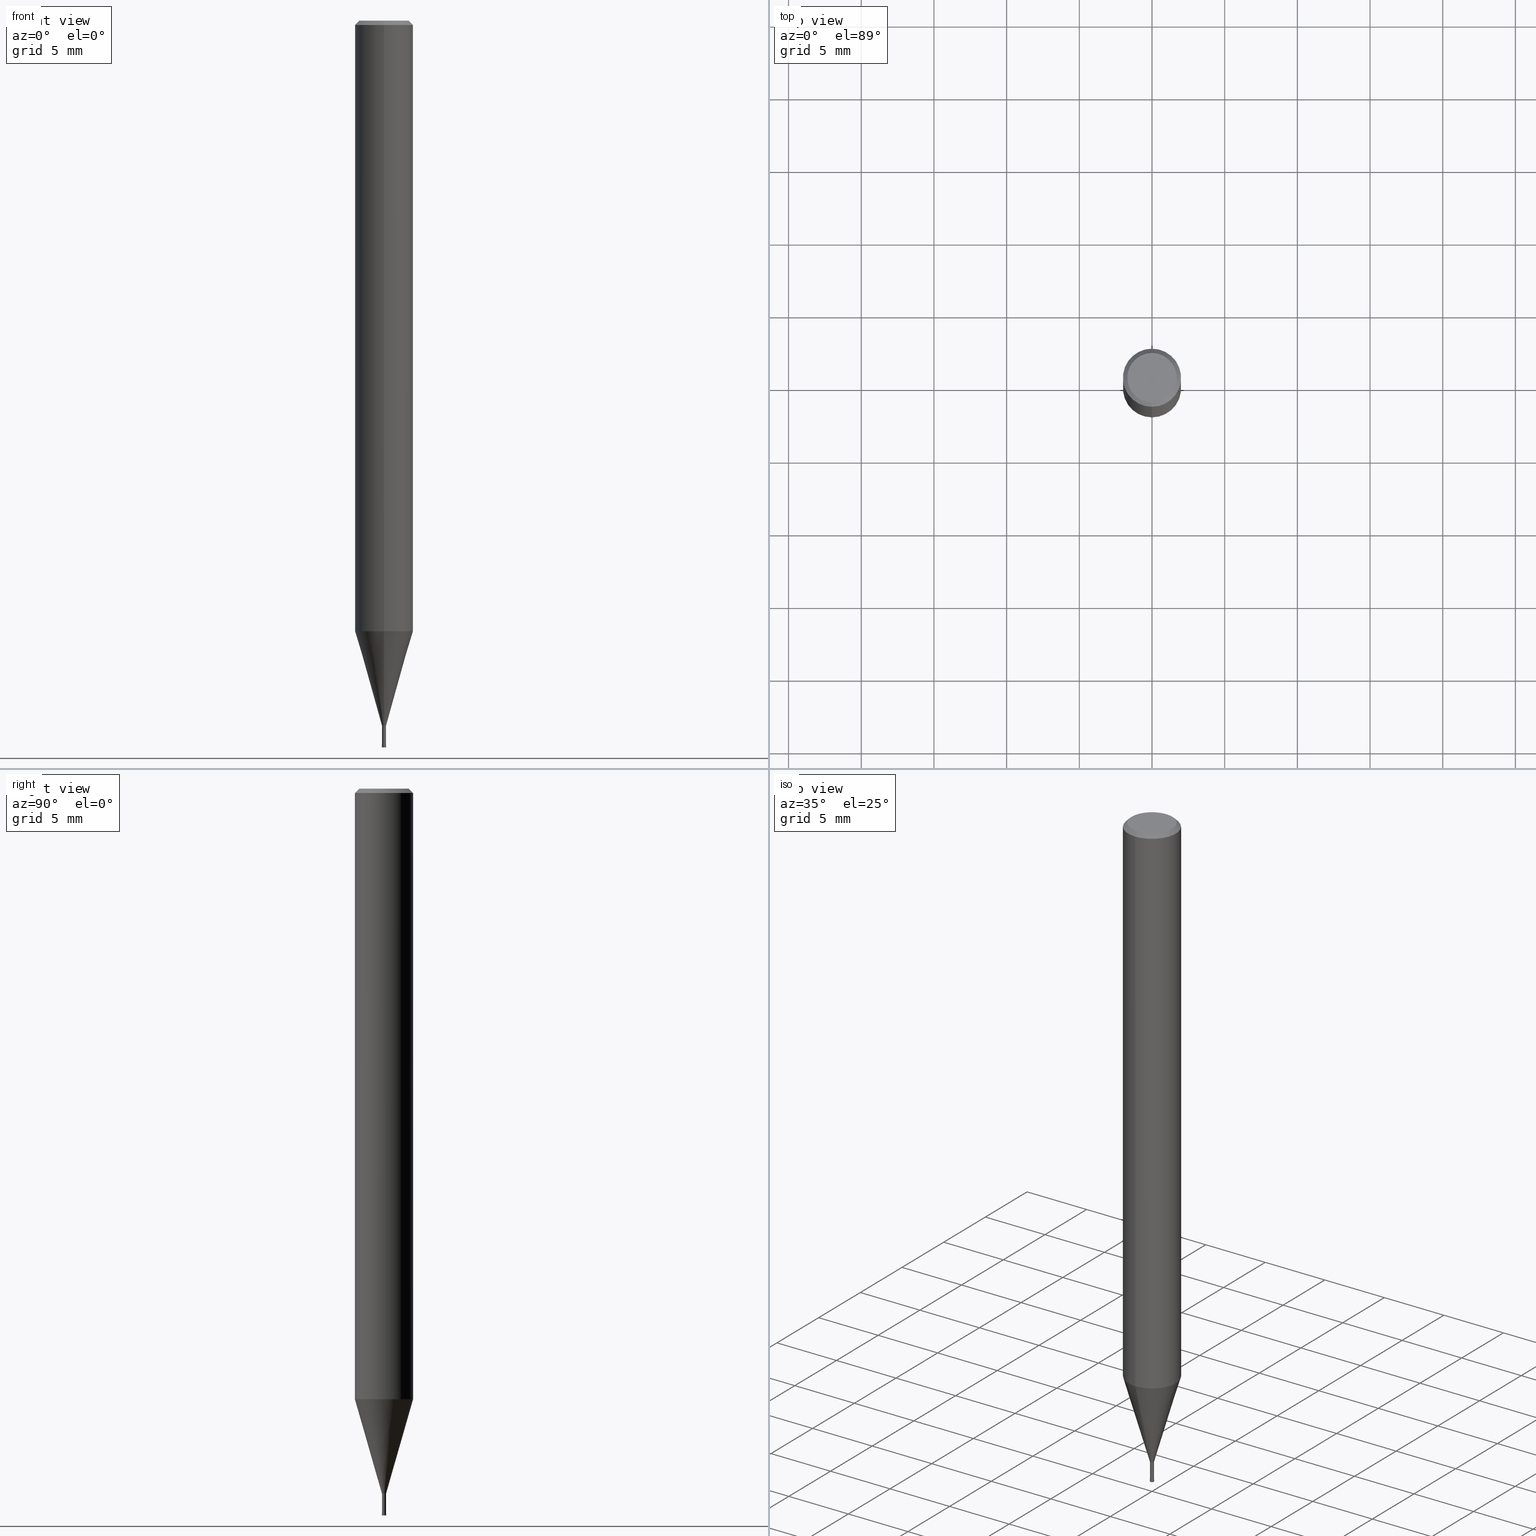
[diagram: canonical four-view strip — front | top / right | iso, engineering-drawing reading convention]
A machine part, canonical four-view strip (front | top / right | iso — engineering-drawing reading convention). The complete STEP part file that produces these views, byte-faithful:
ISO-10303-21;
HEADER;
FILE_DESCRIPTION(('no description'),'unknown implementation level');
FILE_NAME('HLRS4003-002-015-Huellk.stp','  ',('CIMSOURCE GmbH'),('CADClick - KiM GmbH - www.kimweb.de'),'unknown preprocess','ACIS','unknown authorization');
FILE_SCHEMA(('automotive_design'));
ENDSEC;
DATA;
#1=MECHANICAL_DESIGN_GEOMETRIC_PRESENTATION_REPRESENTATION(' ',(#14,#15,#16,#17,#18,#19,#20,#21,#22,#23,#24,#25,#26,#27,#28,#29,#30,#31,#32,#33,#34,#35,#36,#37,#38,#39,#40,#41,#42,#43,#44,#45,#46,#47,#48,#49,#50,#51,#52,#53,#54,#55,#56,#57,#58,#59,#60,#61,#62,#63,#64,#65,#66,#67,#68,#69,#70,#71,#72,#73,#74,#75,#76,#77,#78,#79,#80,#81,#82,#83,#84,#85,#86,#87,#88,#89,#90,#91,#92,#93,#94,#95,#96,#97,#98,#99,#100,#101,#102,#103,#104,#105,#106,#107,#108,#109,#110,#111,#112,#113,#114,#115,#116,#117,#118,#119,#120,#121),#10);
#2=PRODUCT_DEFINITION_CONTEXT('',#122,'design');
#3=APPLICATION_PROTOCOL_DEFINITION('INTERNATIONAL STANDARD','automotive_design',1994,#122);
#4=PRODUCT_CATEGORY_RELATIONSHIP('NONE','NONE',#123,#124);
#5=SHAPE_DEFINITION_REPRESENTATION(#125,#126);
#6=PRODUCT_DEFINITION_CONTEXT('',#127,'design');
#7=APPLICATION_PROTOCOL_DEFINITION('INTERNATIONAL STANDARD','automotive_design',1994,#127);
#8=PRODUCT_CATEGORY_RELATIONSHIP('NONE','NONE',#128,#129);
#9=SHAPE_DEFINITION_REPRESENTATION(#130,#131);
#10= (GEOMETRIC_REPRESENTATION_CONTEXT(3)GLOBAL_UNCERTAINTY_ASSIGNED_CONTEXT((#134))GLOBAL_UNIT_ASSIGNED_CONTEXT((#136,#137,#138))REPRESENTATION_CONTEXT('NONE','WORKSPACE'));
#14=STYLED_ITEM('',(#140),#141);
#15=STYLED_ITEM('',(#142),#143);
#16=STYLED_ITEM('',(#144),#145);
#17=STYLED_ITEM('',(#146),#147);
#18=STYLED_ITEM('',(#148),#149);
#19=STYLED_ITEM('',(#150),#151);
#20=STYLED_ITEM('',(#152),#153);
#21=STYLED_ITEM('',(#154),#155);
#22=STYLED_ITEM('',(#156),#157);
#23=STYLED_ITEM('',(#158),#159);
#24=STYLED_ITEM('',(#160),#161);
#25=STYLED_ITEM('',(#162),#163);
#26=STYLED_ITEM('',(#164),#165);
#27=STYLED_ITEM('',(#166),#167);
#28=STYLED_ITEM('',(#168),#169);
#29=STYLED_ITEM('',(#170),#171);
#30=STYLED_ITEM('',(#172),#173);
#31=STYLED_ITEM('',(#174),#175);
#32=STYLED_ITEM('',(#176),#177);
#33=STYLED_ITEM('',(#178),#179);
#34=STYLED_ITEM('',(#180),#181);
#35=STYLED_ITEM('',(#182),#183);
#36=STYLED_ITEM('',(#184),#185);
#37=STYLED_ITEM('',(#186),#187);
#38=STYLED_ITEM('',(#188),#189);
#39=STYLED_ITEM('',(#190),#191);
#40=STYLED_ITEM('',(#192),#193);
#41=STYLED_ITEM('',(#194),#195);
#42=STYLED_ITEM('',(#196),#197);
#43=STYLED_ITEM('',(#198),#199);
#44=STYLED_ITEM('',(#200),#201);
#45=STYLED_ITEM('',(#202),#203);
#46=STYLED_ITEM('',(#204),#205);
#47=STYLED_ITEM('',(#206),#207);
#48=STYLED_ITEM('',(#208),#209);
#49=STYLED_ITEM('',(#210),#211);
#50=STYLED_ITEM('',(#212),#213);
#51=STYLED_ITEM('',(#214),#215);
#52=STYLED_ITEM('',(#216),#217);
#53=STYLED_ITEM('',(#218),#219);
#54=STYLED_ITEM('',(#220),#221);
#55=STYLED_ITEM('',(#222),#223);
#56=STYLED_ITEM('',(#224),#225);
#57=STYLED_ITEM('',(#226),#227);
#58=STYLED_ITEM('',(#228),#229);
#59=STYLED_ITEM('',(#230),#231);
#60=STYLED_ITEM('',(#232),#233);
#61=STYLED_ITEM('',(#234),#235);
#62=STYLED_ITEM('',(#236),#237);
#63=STYLED_ITEM('',(#238),#239);
#64=STYLED_ITEM('',(#240),#241);
#65=STYLED_ITEM('',(#242),#243);
#66=STYLED_ITEM('',(#244),#245);
#67=STYLED_ITEM('',(#246),#247);
#68=STYLED_ITEM('',(#248),#249);
#69=STYLED_ITEM('',(#250),#251);
#70=STYLED_ITEM('',(#252),#253);
#71=STYLED_ITEM('',(#254),#255);
#72=STYLED_ITEM('',(#256),#257);
#73=STYLED_ITEM('',(#258),#259);
#74=STYLED_ITEM('',(#260),#261);
#75=STYLED_ITEM('',(#262),#263);
#76=STYLED_ITEM('',(#264),#265);
#77=STYLED_ITEM('',(#266),#267);
#78=STYLED_ITEM('',(#268),#269);
#79=STYLED_ITEM('',(#270),#271);
#80=STYLED_ITEM('',(#272),#273);
#81=STYLED_ITEM('',(#274),#275);
#82=STYLED_ITEM('',(#276),#277);
#83=STYLED_ITEM('',(#278),#279);
#84=STYLED_ITEM('',(#280),#281);
#85=STYLED_ITEM('',(#282),#283);
#86=STYLED_ITEM('',(#284),#285);
#87=STYLED_ITEM('',(#286),#287);
#88=STYLED_ITEM('',(#288),#289);
#89=STYLED_ITEM('',(#290),#291);
#90=STYLED_ITEM('',(#292),#293);
#91=STYLED_ITEM('',(#294),#295);
#92=STYLED_ITEM('',(#296),#297);
#93=STYLED_ITEM('',(#298),#299);
#94=STYLED_ITEM('',(#300),#301);
#95=STYLED_ITEM('',(#302),#303);
#96=STYLED_ITEM('',(#304),#305);
#97=STYLED_ITEM('',(#306),#307);
#98=STYLED_ITEM('',(#308),#309);
#99=STYLED_ITEM('',(#310),#311);
#100=STYLED_ITEM('',(#312),#313);
#101=STYLED_ITEM('',(#314),#315);
#102=STYLED_ITEM('',(#316),#317);
#103=STYLED_ITEM('',(#318),#319);
#104=STYLED_ITEM('',(#320),#321);
#105=STYLED_ITEM('',(#322),#323);
#106=STYLED_ITEM('',(#324),#325);
#107=STYLED_ITEM('',(#326),#327);
#108=STYLED_ITEM('',(#328),#329);
#109=STYLED_ITEM('',(#330),#331);
#110=STYLED_ITEM('',(#332),#333);
#111=STYLED_ITEM('',(#334),#335);
#112=STYLED_ITEM('',(#336),#337);
#113=STYLED_ITEM('',(#338),#339);
#114=STYLED_ITEM('',(#340),#341);
#115=STYLED_ITEM('',(#342),#343);
#116=STYLED_ITEM('',(#344),#345);
#117=STYLED_ITEM('',(#346),#347);
#118=STYLED_ITEM('',(#348),#349);
#119=STYLED_ITEM('',(#350),#351);
#120=STYLED_ITEM('',(#352),#353);
#121=STYLED_ITEM('',(#354),#355);
#122=APPLICATION_CONTEXT(' ');
#123=PRODUCT_CATEGORY('part','NONE');
#124=PRODUCT_RELATED_PRODUCT_CATEGORY('detail',' ',(#356));
#125=PRODUCT_DEFINITION_SHAPE('NONE','NONE',#357);
#126=ADVANCED_BREP_SHAPE_REPRESENTATION('1',(#289,#358),#10);
#127=APPLICATION_CONTEXT(' ');
#128=PRODUCT_CATEGORY('part','NONE');
#129=PRODUCT_RELATED_PRODUCT_CATEGORY('detail',' ',(#359));
#130=PRODUCT_DEFINITION_SHAPE('NONE','NONE',#360);
#131=ADVANCED_BREP_SHAPE_REPRESENTATION('2',(#201,#361),#10);
#134=UNCERTAINTY_MEASURE_WITH_UNIT(LENGTH_MEASURE(1.0E-006),#136,'','');
#136= (CONVERSION_BASED_UNIT('MILLIMETRE',#364)LENGTH_UNIT()NAMED_UNIT(#367));
#137= (NAMED_UNIT(#369)PLANE_ANGLE_UNIT()SI_UNIT($,.RADIAN.));
#138= (NAMED_UNIT(#369)SOLID_ANGLE_UNIT()SI_UNIT($,.STERADIAN.));
#140=PRESENTATION_STYLE_ASSIGNMENT((#375));
#141=VERTEX_POINT('',#376);
#142=PRESENTATION_STYLE_ASSIGNMENT((#377));
#143=EDGE_CURVE('',#275,#203,#378,.T.);
#144=PRESENTATION_STYLE_ASSIGNMENT((#379));
#145=VERTEX_POINT('',#380);
#146=PRESENTATION_STYLE_ASSIGNMENT((#381));
#147=EDGE_CURVE('',#335,#163,#382,.T.);
#148=PRESENTATION_STYLE_ASSIGNMENT((#383));
#149=EDGE_CURVE('',#267,#177,#384,.T.);
#150=PRESENTATION_STYLE_ASSIGNMENT((#385));
#151=VERTEX_POINT('',#386);
#152=PRESENTATION_STYLE_ASSIGNMENT((#387));
#153=EDGE_CURVE('',#211,#151,#388,.T.);
#154=PRESENTATION_STYLE_ASSIGNMENT((#389));
#155=EDGE_CURVE('',#177,#319,#390,.T.);
#156=PRESENTATION_STYLE_ASSIGNMENT((#391));
#157=EDGE_CURVE('',#269,#193,#392,.T.);
#158=PRESENTATION_STYLE_ASSIGNMENT((#393));
#159=VERTEX_POINT('',#394);
#160=PRESENTATION_STYLE_ASSIGNMENT((#395));
#161=ADVANCED_FACE('',(#396,#397),#398,.T.);
#162=PRESENTATION_STYLE_ASSIGNMENT((#399));
#163=VERTEX_POINT('',#400);
#164=PRESENTATION_STYLE_ASSIGNMENT((#401));
#165=EDGE_CURVE('',#267,#325,#402,.T.);
#166=PRESENTATION_STYLE_ASSIGNMENT((#403));
#167=VERTEX_POINT('',#404);
#168=PRESENTATION_STYLE_ASSIGNMENT((#405));
#169=EDGE_CURVE('',#141,#159,#406,.T.);
#170=PRESENTATION_STYLE_ASSIGNMENT((#407));
#171=ADVANCED_FACE('',(#408),#409,.T.);
#172=PRESENTATION_STYLE_ASSIGNMENT((#410));
#173=ADVANCED_FACE('',(#411),#412,.T.);
#174=PRESENTATION_STYLE_ASSIGNMENT((#413));
#175=ADVANCED_FACE('',(#414),#415,.T.);
#176=PRESENTATION_STYLE_ASSIGNMENT((#416));
#177=VERTEX_POINT('',#417);
#178=PRESENTATION_STYLE_ASSIGNMENT((#418));
#179=EDGE_CURVE('',#167,#313,#419,.T.);
#180=PRESENTATION_STYLE_ASSIGNMENT((#420));
#181=ADVANCED_FACE('',(#421),#422,.F.);
#182=PRESENTATION_STYLE_ASSIGNMENT((#423));
#183=EDGE_CURVE('',#203,#301,#424,.T.);
#184=PRESENTATION_STYLE_ASSIGNMENT((#425));
#185=VERTEX_POINT('',#426);
#186=PRESENTATION_STYLE_ASSIGNMENT((#427));
#187=ADVANCED_FACE('',(#428),#429,.T.);
#188=PRESENTATION_STYLE_ASSIGNMENT((#430));
#189=ADVANCED_FACE('',(#431),#432,.T.);
#190=PRESENTATION_STYLE_ASSIGNMENT((#433));
#191=EDGE_CURVE('',#349,#239,#434,.T.);
#192=PRESENTATION_STYLE_ASSIGNMENT((#435));
#193=VERTEX_POINT('',#436);
#194=PRESENTATION_STYLE_ASSIGNMENT((#437));
#195=EDGE_CURVE('',#285,#275,#438,.T.);
#196=PRESENTATION_STYLE_ASSIGNMENT((#439));
#197=ADVANCED_FACE('',(#440),#441,.T.);
#198=PRESENTATION_STYLE_ASSIGNMENT((#442));
#199=EDGE_CURVE('',#303,#261,#443,.T.);
#200=PRESENTATION_STYLE_ASSIGNMENT((#444));
#201=MANIFOLD_SOLID_BREP('2',#445);
#202=PRESENTATION_STYLE_ASSIGNMENT((#446));
#203=VERTEX_POINT('',#447);
#204=PRESENTATION_STYLE_ASSIGNMENT((#448));
#205=EDGE_CURVE('',#301,#233,#449,.T.);
#206=PRESENTATION_STYLE_ASSIGNMENT((#450));
#207=EDGE_CURVE('',#273,#323,#451,.T.);
#208=PRESENTATION_STYLE_ASSIGNMENT((#452));
#209=EDGE_CURVE('',#243,#285,#453,.T.);
#210=PRESENTATION_STYLE_ASSIGNMENT((#454));
#211=VERTEX_POINT('',#455);
#212=PRESENTATION_STYLE_ASSIGNMENT((#456));
#213=VERTEX_POINT('',#457);
#214=PRESENTATION_STYLE_ASSIGNMENT((#458));
#215=EDGE_CURVE('',#151,#145,#459,.T.);
#216=PRESENTATION_STYLE_ASSIGNMENT((#460));
#217=EDGE_CURVE('',#203,#275,#461,.T.);
#218=PRESENTATION_STYLE_ASSIGNMENT((#462));
#219=ADVANCED_FACE('',(#463),#464,.F.);
#220=PRESENTATION_STYLE_ASSIGNMENT((#465));
#221=ADVANCED_FACE('',(#466),#467,.T.);
#222=PRESENTATION_STYLE_ASSIGNMENT((#468));
#223=ADVANCED_FACE('',(#469),#470,.F.);
#224=PRESENTATION_STYLE_ASSIGNMENT((#471));
#225=ADVANCED_FACE('',(#472),#473,.T.);
#226=PRESENTATION_STYLE_ASSIGNMENT((#474));
#227=EDGE_CURVE('',#319,#177,#475,.T.);
#228=PRESENTATION_STYLE_ASSIGNMENT((#476));
#229=EDGE_CURVE('',#349,#267,#477,.T.);
#230=PRESENTATION_STYLE_ASSIGNMENT((#478));
#231=ADVANCED_FACE('',(#479),#480,.T.);
#232=PRESENTATION_STYLE_ASSIGNMENT((#481));
#233=VERTEX_POINT('',#482);
#234=PRESENTATION_STYLE_ASSIGNMENT((#483));
#235=EDGE_CURVE('',#193,#273,#484,.T.);
#236=PRESENTATION_STYLE_ASSIGNMENT((#485));
#237=ADVANCED_FACE('',(#486),#487,.T.);
#238=PRESENTATION_STYLE_ASSIGNMENT((#488));
#239=VERTEX_POINT('',#489);
#240=PRESENTATION_STYLE_ASSIGNMENT((#490));
#241=EDGE_CURVE('',#211,#185,#491,.T.);
#242=PRESENTATION_STYLE_ASSIGNMENT((#492));
#243=VERTEX_POINT('',#493);
#244=PRESENTATION_STYLE_ASSIGNMENT((#494));
#245=EDGE_CURVE('',#185,#213,#495,.T.);
#246=PRESENTATION_STYLE_ASSIGNMENT((#496));
#247=EDGE_CURVE('',#313,#335,#497,.T.);
#248=PRESENTATION_STYLE_ASSIGNMENT((#498));
#249=EDGE_CURVE('',#303,#269,#499,.T.);
#250=PRESENTATION_STYLE_ASSIGNMENT((#500));
#251=EDGE_CURVE('',#151,#211,#501,.T.);
#252=PRESENTATION_STYLE_ASSIGNMENT((#502));
#253=EDGE_CURVE('',#261,#303,#503,.T.);
#254=PRESENTATION_STYLE_ASSIGNMENT((#504));
#255=EDGE_CURVE('',#301,#285,#505,.T.);
#256=PRESENTATION_STYLE_ASSIGNMENT((#506));
#257=ADVANCED_FACE('',(#507),#508,.T.);
#258=PRESENTATION_STYLE_ASSIGNMENT((#509));
#259=EDGE_CURVE('',#141,#335,#510,.T.);
#260=PRESENTATION_STYLE_ASSIGNMENT((#511));
#261=VERTEX_POINT('',#512);
#262=PRESENTATION_STYLE_ASSIGNMENT((#513));
#263=ADVANCED_FACE('',(#514,#515),#516,.T.);
#264=PRESENTATION_STYLE_ASSIGNMENT((#517));
#265=EDGE_CURVE('',#163,#159,#518,.T.);
#266=PRESENTATION_STYLE_ASSIGNMENT((#519));
#267=VERTEX_POINT('',#520);
#268=PRESENTATION_STYLE_ASSIGNMENT((#521));
#269=VERTEX_POINT('',#522);
#270=PRESENTATION_STYLE_ASSIGNMENT((#523));
#271=EDGE_CURVE('',#213,#185,#524,.T.);
#272=PRESENTATION_STYLE_ASSIGNMENT((#525));
#273=VERTEX_POINT('',#526);
#274=PRESENTATION_STYLE_ASSIGNMENT((#527));
#275=VERTEX_POINT('',#528);
#276=PRESENTATION_STYLE_ASSIGNMENT((#529));
#277=EDGE_CURVE('',#239,#349,#530,.T.);
#278=PRESENTATION_STYLE_ASSIGNMENT((#531));
#279=EDGE_CURVE('',#313,#167,#532,.T.);
#280=PRESENTATION_STYLE_ASSIGNMENT((#533));
#281=EDGE_CURVE('',#329,#145,#534,.T.);
#282=PRESENTATION_STYLE_ASSIGNMENT((#535));
#283=ADVANCED_FACE('',(#536),#537,.T.);
#284=PRESENTATION_STYLE_ASSIGNMENT((#538));
#285=VERTEX_POINT('',#539);
#286=PRESENTATION_STYLE_ASSIGNMENT((#540));
#287=ADVANCED_FACE('',(#541),#542,.T.);
#288=PRESENTATION_STYLE_ASSIGNMENT((#543));
#289=MANIFOLD_SOLID_BREP('1',#544);
#290=PRESENTATION_STYLE_ASSIGNMENT((#545));
#291=EDGE_CURVE('',#285,#301,#546,.T.);
#292=PRESENTATION_STYLE_ASSIGNMENT((#547));
#293=EDGE_CURVE('',#273,#193,#548,.T.);
#294=PRESENTATION_STYLE_ASSIGNMENT((#549));
#295=EDGE_CURVE('',#319,#325,#550,.T.);
#296=PRESENTATION_STYLE_ASSIGNMENT((#551));
#297=ADVANCED_FACE('',(#552),#553,.T.);
#298=PRESENTATION_STYLE_ASSIGNMENT((#554));
#299=EDGE_CURVE('',#325,#239,#555,.T.);
#300=PRESENTATION_STYLE_ASSIGNMENT((#556));
#301=VERTEX_POINT('',#557);
#302=PRESENTATION_STYLE_ASSIGNMENT((#558));
#303=VERTEX_POINT('',#559);
#304=PRESENTATION_STYLE_ASSIGNMENT((#560));
#305=ADVANCED_FACE('',(#561),#562,.T.);
#306=PRESENTATION_STYLE_ASSIGNMENT((#563));
#307=EDGE_CURVE('',#159,#141,#564,.T.);
#308=PRESENTATION_STYLE_ASSIGNMENT((#565));
#309=EDGE_CURVE('',#243,#233,#566,.T.);
#310=PRESENTATION_STYLE_ASSIGNMENT((#567));
#311=EDGE_CURVE('',#163,#335,#568,.T.);
#312=PRESENTATION_STYLE_ASSIGNMENT((#569));
#313=VERTEX_POINT('',#570);
#314=PRESENTATION_STYLE_ASSIGNMENT((#571));
#315=EDGE_CURVE('',#323,#261,#572,.T.);
#316=PRESENTATION_STYLE_ASSIGNMENT((#573));
#317=EDGE_CURVE('',#329,#211,#574,.T.);
#318=PRESENTATION_STYLE_ASSIGNMENT((#575));
#319=VERTEX_POINT('',#576);
#320=PRESENTATION_STYLE_ASSIGNMENT((#577));
#321=ADVANCED_FACE('',(#578),#579,.T.);
#322=PRESENTATION_STYLE_ASSIGNMENT((#580));
#323=VERTEX_POINT('',#581);
#324=PRESENTATION_STYLE_ASSIGNMENT((#582));
#325=VERTEX_POINT('',#583);
#326=PRESENTATION_STYLE_ASSIGNMENT((#584));
#327=EDGE_CURVE('',#233,#243,#585,.T.);
#328=PRESENTATION_STYLE_ASSIGNMENT((#586));
#329=VERTEX_POINT('',#587);
#330=PRESENTATION_STYLE_ASSIGNMENT((#588));
#331=EDGE_CURVE('',#163,#167,#589,.T.);
#332=PRESENTATION_STYLE_ASSIGNMENT((#590));
#333=ADVANCED_FACE('',(#591,#592),#593,.T.);
#334=PRESENTATION_STYLE_ASSIGNMENT((#594));
#335=VERTEX_POINT('',#595);
#336=PRESENTATION_STYLE_ASSIGNMENT((#596));
#337=EDGE_CURVE('',#269,#323,#597,.T.);
#338=PRESENTATION_STYLE_ASSIGNMENT((#598));
#339=ADVANCED_FACE('',(#599),#600,.F.);
#340=PRESENTATION_STYLE_ASSIGNMENT((#601));
#341=ADVANCED_FACE('',(#602),#603,.T.);
#342=PRESENTATION_STYLE_ASSIGNMENT((#604));
#343=EDGE_CURVE('',#145,#329,#605,.T.);
#344=PRESENTATION_STYLE_ASSIGNMENT((#606));
#345=ADVANCED_FACE('',(#607),#608,.T.);
#346=PRESENTATION_STYLE_ASSIGNMENT((#609));
#347=EDGE_CURVE('',#323,#269,#610,.T.);
#348=PRESENTATION_STYLE_ASSIGNMENT((#611));
#349=VERTEX_POINT('',#612);
#350=PRESENTATION_STYLE_ASSIGNMENT((#613));
#351=EDGE_CURVE('',#213,#151,#614,.T.);
#352=PRESENTATION_STYLE_ASSIGNMENT((#615));
#353=ADVANCED_FACE('',(#616,#617),#618,.T.);
#354=PRESENTATION_STYLE_ASSIGNMENT((#619));
#355=EDGE_CURVE('',#325,#267,#620,.T.);
#356=PRODUCT('1','1','PART-1-DESC',(#621));
#357=PRODUCT_DEFINITION('NONE','NONE',#622,#2);
#358=AXIS2_PLACEMENT_3D('',#623,#624,#625);
#359=PRODUCT('2','2','PART-2-DESC',(#626));
#360=PRODUCT_DEFINITION('NONE','NONE',#627,#6);
#361=AXIS2_PLACEMENT_3D('',#628,#629,#630);
#364=LENGTH_MEASURE_WITH_UNIT(LENGTH_MEASURE(1.0),#631);
#367=DIMENSIONAL_EXPONENTS(1.0,0.0,0.0,0.0,0.0,0.0,0.0);
#369=DIMENSIONAL_EXPONENTS(0.0,0.0,0.0,0.0,0.0,0.0,0.0);
#375=POINT_STYLE(' ',#632,POSITIVE_LENGTH_MEASURE(1.0E-006),#633);
#376=CARTESIAN_POINT('',(0.0,0.13,-49.99));
#377=CURVE_STYLE('',#634,POSITIVE_LENGTH_MEASURE(1.0E-006),#635);
#378=CIRCLE('',#636,0.0675);
#379=POINT_STYLE(' ',#637,POSITIVE_LENGTH_MEASURE(1.0E-006),#638);
#380=CARTESIAN_POINT('',(2.08183080149804E-016,-1.7,0.00999999999999801));
#381=CURVE_STYLE('',#639,POSITIVE_LENGTH_MEASURE(1.0E-006),#640);
#382=CIRCLE('',#641,0.15);
#383=CURVE_STYLE('',#642,POSITIVE_LENGTH_MEASURE(1.0E-006),#643);
#384=LINE('',#644,#645);
#385=POINT_STYLE(' ',#646,POSITIVE_LENGTH_MEASURE(1.0E-006),#647);
#386=CARTESIAN_POINT('',(2.44921270764475E-016,-2.0,-0.289999999999999));
#387=CURVE_STYLE('',#648,POSITIVE_LENGTH_MEASURE(1.0E-006),#649);
#388=CIRCLE('',#650,2.0);
#389=CURVE_STYLE('',#651,POSITIVE_LENGTH_MEASURE(1.0E-006),#652);
#390=CIRCLE('',#653,0.1449);
#391=CURVE_STYLE('',#654,POSITIVE_LENGTH_MEASURE(1.0E-006),#655);
#392=LINE('',#656,#657);
#393=POINT_STYLE(' ',#658,POSITIVE_LENGTH_MEASURE(1.0E-006),#659);
#394=CARTESIAN_POINT('',(1.59198825996909E-017,-0.13,-49.99));
#395=SURFACE_STYLE_USAGE(.BOTH.,#660);
#396=FACE_OUTER_BOUND('',#661,.T.);
#397=FACE_BOUND('',#662,.T.);
#398=PLANE('',#663);
#399=POINT_STYLE(' ',#664,POSITIVE_LENGTH_MEASURE(1.0E-006),#665);
#400=CARTESIAN_POINT('',(1.83690953073357E-017,-0.15,-49.97));
#401=CURVE_STYLE('',#666,POSITIVE_LENGTH_MEASURE(1.0E-006),#667);
#402=CIRCLE('',#668,0.0675);
#403=POINT_STYLE(' ',#669,POSITIVE_LENGTH_MEASURE(1.0E-006),#670);
#404=CARTESIAN_POINT('',(1.83568492437974E-017,-0.1499,-49.81));
#405=CURVE_STYLE('',#671,POSITIVE_LENGTH_MEASURE(1.0E-006),#672);
#406=CIRCLE('',#673,0.13);
#407=SURFACE_STYLE_USAGE(.BOTH.,#674);
#408=FACE_OUTER_BOUND('',#675,.T.);
#409=CONICAL_SURFACE('',#676,1.06995,0.27923596926092);
#410=SURFACE_STYLE_USAGE(.BOTH.,#677);
#411=FACE_OUTER_BOUND('',#678,.T.);
#412=CONICAL_SURFACE('',#679,0.106225,1.44239116379722);
#413=SURFACE_STYLE_USAGE(.BOTH.,#680);
#414=FACE_OUTER_BOUND('',#681,.T.);
#415=CYLINDRICAL_SURFACE('',#682,0.13995);
#416=POINT_STYLE(' ',#683,POSITIVE_LENGTH_MEASURE(1.0E-006),#684);
#417=CARTESIAN_POINT('',(1.77445460668862E-017,-0.1449,-49.81));
#418=CURVE_STYLE('',#685,POSITIVE_LENGTH_MEASURE(1.0E-006),#686);
#419=CIRCLE('',#687,0.1499);
#420=SURFACE_STYLE_USAGE(.BOTH.,#688);
#421=FACE_OUTER_BOUND('',#689,.T.);
#422=CYLINDRICAL_SURFACE('',#690,0.0675);
#423=CURVE_STYLE('',#691,POSITIVE_LENGTH_MEASURE(1.0E-006),#692);
#424=LINE('',#693,#694);
#425=POINT_STYLE(' ',#695,POSITIVE_LENGTH_MEASURE(1.0E-006),#696);
#426=CARTESIAN_POINT('',(0.0,2.0,-42.003));
#427=SURFACE_STYLE_USAGE(.BOTH.,#697);
#428=FACE_OUTER_BOUND('',#698,.T.);
#429=CYLINDRICAL_SURFACE('',#699,2.0);
#430=SURFACE_STYLE_USAGE(.BOTH.,#700);
#431=FACE_OUTER_BOUND('',#701,.T.);
#432=CONICAL_SURFACE('',#702,1.85,0.785398163397453);
#433=CURVE_STYLE('',#703,POSITIVE_LENGTH_MEASURE(1.0E-006),#704);
#434=CIRCLE('',#705,0.0675);
#435=POINT_STYLE(' ',#706,POSITIVE_LENGTH_MEASURE(1.0E-006),#707);
#436=CARTESIAN_POINT('',(2.44915147732706E-016,-1.99995,-42.003));
#437=CURVE_STYLE('',#708,POSITIVE_LENGTH_MEASURE(1.0E-006),#709);
#438=LINE('',#710,#711);
#439=SURFACE_STYLE_USAGE(.BOTH.,#712);
#440=FACE_OUTER_BOUND('',#713,.T.);
#441=PLANE('',#714);
#442=CURVE_STYLE('',#715,POSITIVE_LENGTH_MEASURE(1.0E-006),#716);
#443=CIRCLE('',#717,0.13995);
#444=SURFACE_STYLE_USAGE(.BOTH.,#718);
#445=CLOSED_SHELL('',(#181,#237,#257,#339,#219,#333,#283,#221,#353,#223));
#446=POINT_STYLE(' ',#719,POSITIVE_LENGTH_MEASURE(1.0E-006),#720);
#447=CARTESIAN_POINT('',(8.26609288830105E-018,-0.0675,-49.945));
#448=CURVE_STYLE('',#721,POSITIVE_LENGTH_MEASURE(1.0E-006),#722);
#449=LINE('',#723,#724);
#450=CURVE_STYLE('',#725,POSITIVE_LENGTH_MEASURE(1.0E-006),#726);
#451=LINE('',#727,#728);
#452=CURVE_STYLE('',#729,POSITIVE_LENGTH_MEASURE(1.0E-006),#730);
#453=LINE('',#731,#732);
#454=POINT_STYLE(' ',#733,POSITIVE_LENGTH_MEASURE(1.0E-006),#734);
#455=CARTESIAN_POINT('',(0.0,2.0,-0.289999999999999));
#456=POINT_STYLE(' ',#735,POSITIVE_LENGTH_MEASURE(1.0E-006),#736);
#457=CARTESIAN_POINT('',(2.44921270764475E-016,-2.0,-42.003));
#458=CURVE_STYLE('',#737,POSITIVE_LENGTH_MEASURE(1.0E-006),#738);
#459=LINE('',#739,#740);
#460=CURVE_STYLE('',#741,POSITIVE_LENGTH_MEASURE(1.0E-006),#742);
#461=CIRCLE('',#743,0.0675);
#462=SURFACE_STYLE_USAGE(.BOTH.,#744);
#463=FACE_OUTER_BOUND('',#745,.T.);
#464=CONICAL_SURFACE('',#746,0.1062,1.44230912436268);
#465=SURFACE_STYLE_USAGE(.BOTH.,#747);
#466=FACE_OUTER_BOUND('',#748,.T.);
#467=TOROIDAL_SURFACE('',#749,0.13,0.0199999999999999);
#468=SURFACE_STYLE_USAGE(.BOTH.,#750);
#469=FACE_OUTER_BOUND('',#751,.T.);
#470=CYLINDRICAL_SURFACE('',#752,0.0675);
#471=SURFACE_STYLE_USAGE(.BOTH.,#753);
#472=FACE_OUTER_BOUND('',#754,.T.);
#473=CYLINDRICAL_SURFACE('',#755,2.0);
#474=CURVE_STYLE('',#756,POSITIVE_LENGTH_MEASURE(1.0E-006),#757);
#475=CIRCLE('',#758,0.1449);
#476=CURVE_STYLE('',#759,POSITIVE_LENGTH_MEASURE(1.0E-006),#760);
#477=LINE('',#761,#762);
#478=SURFACE_STYLE_USAGE(.BOTH.,#763);
#479=FACE_OUTER_BOUND('',#764,.T.);
#480=CYLINDRICAL_SURFACE('',#765,0.0675);
#481=POINT_STYLE(' ',#766,POSITIVE_LENGTH_MEASURE(1.0E-006),#767);
#482=CARTESIAN_POINT('',(1.77506690986554E-017,-0.14495,-49.81));
#483=CURVE_STYLE('',#768,POSITIVE_LENGTH_MEASURE(1.0E-006),#769);
#484=CIRCLE('',#770,1.99995);
#485=SURFACE_STYLE_USAGE(.BOTH.,#771);
#486=FACE_OUTER_BOUND('',#772,.T.);
#487=TOROIDAL_SURFACE('',#773,0.13,0.0199999999999999);
#488=POINT_STYLE(' ',#774,POSITIVE_LENGTH_MEASURE(1.0E-006),#775);
#489=CARTESIAN_POINT('',(0.0,0.0675,-49.99));
#490=CURVE_STYLE('',#776,POSITIVE_LENGTH_MEASURE(1.0E-006),#777);
#491=LINE('',#778,#779);
#492=POINT_STYLE(' ',#780,POSITIVE_LENGTH_MEASURE(1.0E-006),#781);
#493=CARTESIAN_POINT('',(0.0,0.14495,-49.81));
#494=CURVE_STYLE('',#782,POSITIVE_LENGTH_MEASURE(1.0E-006),#783);
#495=CIRCLE('',#784,2.0);
#496=CURVE_STYLE('',#785,POSITIVE_LENGTH_MEASURE(1.0E-006),#786);
#497=LINE('',#787,#788);
#498=CURVE_STYLE('',#789,POSITIVE_LENGTH_MEASURE(1.0E-006),#790);
#499=LINE('',#791,#792);
#500=CURVE_STYLE('',#793,POSITIVE_LENGTH_MEASURE(1.0E-006),#794);
#501=CIRCLE('',#795,2.0);
#502=CURVE_STYLE('',#796,POSITIVE_LENGTH_MEASURE(1.0E-006),#797);
#503=CIRCLE('',#798,0.13995);
#504=CURVE_STYLE('',#799,POSITIVE_LENGTH_MEASURE(1.0E-006),#800);
#505=CIRCLE('',#801,0.0675);
#506=SURFACE_STYLE_USAGE(.BOTH.,#802);
#507=FACE_OUTER_BOUND('',#803,.T.);
#508=CONICAL_SURFACE('',#804,0.14995,0.000624999918619742);
#509=CURVE_STYLE('',#805,POSITIVE_LENGTH_MEASURE(1.0E-006),#806);
#510=CIRCLE('',#807,0.0199999999999999);
#511=POINT_STYLE(' ',#808,POSITIVE_LENGTH_MEASURE(1.0E-006),#809);
#512=CARTESIAN_POINT('',(0.0,0.13995,-49.81));
#513=SURFACE_STYLE_USAGE(.BOTH.,#810);
#514=FACE_OUTER_BOUND('',#811,.T.);
#515=FACE_BOUND('',#812,.T.);
#516=PLANE('',#813);
#517=CURVE_STYLE('',#814,POSITIVE_LENGTH_MEASURE(1.0E-006),#815);
#518=CIRCLE('',#816,0.0199999999999999);
#519=POINT_STYLE(' ',#817,POSITIVE_LENGTH_MEASURE(1.0E-006),#818);
#520=CARTESIAN_POINT('',(8.26609288830105E-018,-0.0675,-49.82));
#521=POINT_STYLE(' ',#819,POSITIVE_LENGTH_MEASURE(1.0E-006),#820);
#522=CARTESIAN_POINT('',(1.71383659217442E-017,-0.13995,-48.49));
#523=CURVE_STYLE('',#821,POSITIVE_LENGTH_MEASURE(1.0E-006),#822);
#524=CIRCLE('',#823,2.0);
#525=POINT_STYLE(' ',#824,POSITIVE_LENGTH_MEASURE(1.0E-006),#825);
#526=CARTESIAN_POINT('',(0.0,1.99995,-42.003));
#527=POINT_STYLE(' ',#826,POSITIVE_LENGTH_MEASURE(1.0E-006),#827);
#528=CARTESIAN_POINT('',(0.0,0.0675,-49.945));
#529=CURVE_STYLE('',#828,POSITIVE_LENGTH_MEASURE(1.0E-006),#829);
#530=CIRCLE('',#830,0.0675);
#531=CURVE_STYLE('',#831,POSITIVE_LENGTH_MEASURE(1.0E-006),#832);
#532=CIRCLE('',#833,0.1499);
#533=CURVE_STYLE('',#834,POSITIVE_LENGTH_MEASURE(1.0E-006),#835);
#534=CIRCLE('',#836,1.7);
#535=SURFACE_STYLE_USAGE(.BOTH.,#837);
#536=FACE_OUTER_BOUND('',#838,.T.);
#537=CONICAL_SURFACE('',#839,0.14995,0.000624999918619742);
#538=POINT_STYLE(' ',#840,POSITIVE_LENGTH_MEASURE(1.0E-006),#841);
#539=CARTESIAN_POINT('',(0.0,0.0675,-49.82));
#540=SURFACE_STYLE_USAGE(.BOTH.,#842);
#541=FACE_OUTER_BOUND('',#843,.T.);
#542=CYLINDRICAL_SURFACE('',#844,0.0675);
#543=SURFACE_STYLE_USAGE(.BOTH.,#845);
#544=CLOSED_SHELL('',(#287,#305,#321,#171,#187,#189,#263,#197,#297,#225,#341,#175,#161,#173,#231,#345));
#545=CURVE_STYLE('',#846,POSITIVE_LENGTH_MEASURE(1.0E-006),#847);
#546=CIRCLE('',#848,0.0675);
#547=CURVE_STYLE('',#849,POSITIVE_LENGTH_MEASURE(1.0E-006),#850);
#548=CIRCLE('',#851,1.99995);
#549=CURVE_STYLE('',#852,POSITIVE_LENGTH_MEASURE(1.0E-006),#853);
#550=LINE('',#854,#855);
#551=SURFACE_STYLE_USAGE(.BOTH.,#856);
#552=FACE_OUTER_BOUND('',#857,.T.);
#553=CONICAL_SURFACE('',#858,1.85,0.785398163397453);
#554=CURVE_STYLE('',#859,POSITIVE_LENGTH_MEASURE(1.0E-006),#860);
#555=LINE('',#861,#862);
#556=POINT_STYLE(' ',#863,POSITIVE_LENGTH_MEASURE(1.0E-006),#864);
#557=CARTESIAN_POINT('',(8.26609288830105E-018,-0.0675,-49.82));
#558=POINT_STYLE(' ',#865,POSITIVE_LENGTH_MEASURE(1.0E-006),#866);
#559=CARTESIAN_POINT('',(1.71383659217442E-017,-0.13995,-49.81));
#560=SURFACE_STYLE_USAGE(.BOTH.,#867);
#561=FACE_OUTER_BOUND('',#868,.T.);
#562=CONICAL_SURFACE('',#869,0.106225,1.44239116379722);
#563=CURVE_STYLE('',#870,POSITIVE_LENGTH_MEASURE(1.0E-006),#871);
#564=CIRCLE('',#872,0.13);
#565=CURVE_STYLE('',#873,POSITIVE_LENGTH_MEASURE(1.0E-006),#874);
#566=CIRCLE('',#875,0.14495);
#567=CURVE_STYLE('',#876,POSITIVE_LENGTH_MEASURE(1.0E-006),#877);
#568=CIRCLE('',#878,0.15);
#569=POINT_STYLE(' ',#879,POSITIVE_LENGTH_MEASURE(1.0E-006),#880);
#570=CARTESIAN_POINT('',(0.0,0.1499,-49.81));
#571=CURVE_STYLE('',#881,POSITIVE_LENGTH_MEASURE(1.0E-006),#882);
#572=LINE('',#883,#884);
#573=CURVE_STYLE('',#885,POSITIVE_LENGTH_MEASURE(1.0E-006),#886);
#574=LINE('',#887,#888);
#575=POINT_STYLE(' ',#889,POSITIVE_LENGTH_MEASURE(1.0E-006),#890);
#576=CARTESIAN_POINT('',(0.0,0.1449,-49.81));
#577=SURFACE_STYLE_USAGE(.BOTH.,#891);
#578=FACE_OUTER_BOUND('',#892,.T.);
#579=CYLINDRICAL_SURFACE('',#893,0.13995);
#580=POINT_STYLE(' ',#894,POSITIVE_LENGTH_MEASURE(1.0E-006),#895);
#581=CARTESIAN_POINT('',(0.0,0.13995,-48.49));
#582=POINT_STYLE(' ',#896,POSITIVE_LENGTH_MEASURE(1.0E-006),#897);
#583=CARTESIAN_POINT('',(0.0,0.0675,-49.82));
#584=CURVE_STYLE('',#898,POSITIVE_LENGTH_MEASURE(1.0E-006),#899);
#585=CIRCLE('',#900,0.14495);
#586=POINT_STYLE(' ',#901,POSITIVE_LENGTH_MEASURE(1.0E-006),#902);
#587=CARTESIAN_POINT('',(0.0,1.7,0.00999999999999801));
#588=CURVE_STYLE('',#903,POSITIVE_LENGTH_MEASURE(1.0E-006),#904);
#589=LINE('',#905,#906);
#590=SURFACE_STYLE_USAGE(.BOTH.,#907);
#591=FACE_OUTER_BOUND('',#908,.T.);
#592=FACE_BOUND('',#909,.T.);
#593=PLANE('',#910);
#594=POINT_STYLE(' ',#911,POSITIVE_LENGTH_MEASURE(1.0E-006),#912);
#595=CARTESIAN_POINT('',(0.0,0.15,-49.97));
#596=CURVE_STYLE('',#913,POSITIVE_LENGTH_MEASURE(1.0E-006),#914);
#597=CIRCLE('',#915,0.13995);
#598=SURFACE_STYLE_USAGE(.BOTH.,#916);
#599=FACE_OUTER_BOUND('',#917,.T.);
#600=CONICAL_SURFACE('',#918,0.1062,1.44230912436268);
#601=SURFACE_STYLE_USAGE(.BOTH.,#919);
#602=FACE_OUTER_BOUND('',#920,.T.);
#603=CONICAL_SURFACE('',#921,1.06995,0.27923596926092);
#604=CURVE_STYLE('',#922,POSITIVE_LENGTH_MEASURE(1.0E-006),#923);
#605=CIRCLE('',#924,1.7);
#606=SURFACE_STYLE_USAGE(.BOTH.,#925);
#607=FACE_OUTER_BOUND('',#926,.T.);
#608=PLANE('',#927);
#609=CURVE_STYLE('',#928,POSITIVE_LENGTH_MEASURE(1.0E-006),#929);
#610=CIRCLE('',#930,0.13995);
#611=POINT_STYLE(' ',#931,POSITIVE_LENGTH_MEASURE(1.0E-006),#932);
#612=CARTESIAN_POINT('',(8.26609288830105E-018,-0.0675,-49.99));
#613=CURVE_STYLE('',#933,POSITIVE_LENGTH_MEASURE(1.0E-006),#934);
#614=LINE('',#935,#936);
#615=SURFACE_STYLE_USAGE(.BOTH.,#937);
#616=FACE_BOUND('',#938,.T.);
#617=FACE_OUTER_BOUND('',#939,.T.);
#618=PLANE('',#940);
#619=CURVE_STYLE('',#941,POSITIVE_LENGTH_MEASURE(1.0E-006),#942);
#620=CIRCLE('',#943,0.0675);
#621=PRODUCT_CONTEXT('',#122,'mechanical');
#622=PRODUCT_DEFINITION_FORMATION_WITH_SPECIFIED_SOURCE(' ','NONE',#356,.NOT_KNOWN.);
#623=CARTESIAN_POINT('',(0.0,0.0,0.0));
#624=DIRECTION('',(0.0,0.0,1.0));
#625=DIRECTION('',(1.0,0.0,0.0));
#626=PRODUCT_CONTEXT('',#127,'mechanical');
#627=PRODUCT_DEFINITION_FORMATION_WITH_SPECIFIED_SOURCE(' ','NONE',#359,.NOT_KNOWN.);
#628=CARTESIAN_POINT('',(0.0,0.0,0.0));
#629=DIRECTION('',(0.0,0.0,1.0));
#630=DIRECTION('',(1.0,0.0,0.0));
#631= (NAMED_UNIT(#367)LENGTH_UNIT()SI_UNIT(.MILLI.,.METRE.));
#632=PRE_DEFINED_MARKER('');
#633=COLOUR_RGB('',0.800000011920929,0.800000011920929,0.800000011920929);
#634=DRAUGHTING_PRE_DEFINED_CURVE_FONT('continuous');
#635=COLOUR_RGB('',0.498039215803146,0.498039215803146,0.498039215803146);
#636=AXIS2_PLACEMENT_3D('',#945,#946,#947);
#637=PRE_DEFINED_MARKER('');
#638=COLOUR_RGB('',0.498039215803146,0.498039215803146,0.498039215803146);
#639=DRAUGHTING_PRE_DEFINED_CURVE_FONT('continuous');
#640=COLOUR_RGB('',0.800000011920929,0.800000011920929,0.800000011920929);
#641=AXIS2_PLACEMENT_3D('',#948,#949,#950);
#642=DRAUGHTING_PRE_DEFINED_CURVE_FONT('continuous');
#643=COLOUR_RGB('',0.800000011920929,0.800000011920929,0.800000011920929);
#644=CARTESIAN_POINT('',(1.30053194775936E-017,-0.1062,-49.815));
#645=VECTOR('',#951,1.0);
#646=PRE_DEFINED_MARKER('');
#647=COLOUR_RGB('',0.498039215803146,0.498039215803146,0.498039215803146);
#648=DRAUGHTING_PRE_DEFINED_CURVE_FONT('continuous');
#649=COLOUR_RGB('',0.498039215803146,0.498039215803146,0.498039215803146);
#650=AXIS2_PLACEMENT_3D('',#952,#953,#954);
#651=DRAUGHTING_PRE_DEFINED_CURVE_FONT('continuous');
#652=COLOUR_RGB('',0.800000011920929,0.800000011920929,0.800000011920929);
#653=AXIS2_PLACEMENT_3D('',#955,#956,#957);
#654=DRAUGHTING_PRE_DEFINED_CURVE_FONT('continuous');
#655=COLOUR_RGB('',0.498039215803146,0.498039215803146,0.498039215803146);
#656=CARTESIAN_POINT('',(1.31026756827225E-016,-1.06995,-45.2465));
#657=VECTOR('',#958,1.0);
#658=PRE_DEFINED_MARKER('');
#659=COLOUR_RGB('',0.800000011920929,0.800000011920929,0.800000011920929);
#660=SURFACE_SIDE_STYLE('',(#959));
#661=EDGE_LOOP('',(#960,#961));
#662=EDGE_LOOP('',(#962,#963));
#663=AXIS2_PLACEMENT_3D('',#964,#965,#966);
#664=PRE_DEFINED_MARKER('');
#665=COLOUR_RGB('',0.800000011920929,0.800000011920929,0.800000011920929);
#666=DRAUGHTING_PRE_DEFINED_CURVE_FONT('continuous');
#667=COLOUR_RGB('',0.800000011920929,0.800000011920929,0.800000011920929);
#668=AXIS2_PLACEMENT_3D('',#967,#968,#969);
#669=PRE_DEFINED_MARKER('');
#670=COLOUR_RGB('',0.800000011920929,0.800000011920929,0.800000011920929);
#671=DRAUGHTING_PRE_DEFINED_CURVE_FONT('continuous');
#672=COLOUR_RGB('',0.800000011920929,0.800000011920929,0.800000011920929);
#673=AXIS2_PLACEMENT_3D('',#970,#971,#972);
#674=SURFACE_SIDE_STYLE('',(#973));
#675=EDGE_LOOP('',(#974,#975,#976,#977));
#676=AXIS2_PLACEMENT_3D('',#978,#979,#980);
#677=SURFACE_SIDE_STYLE('',(#981));
#678=EDGE_LOOP('',(#982,#983,#984,#985));
#679=AXIS2_PLACEMENT_3D('',#986,#987,#988);
#680=SURFACE_SIDE_STYLE('',(#989));
#681=EDGE_LOOP('',(#990,#991,#992,#993));
#682=AXIS2_PLACEMENT_3D('',#994,#995,#996);
#683=PRE_DEFINED_MARKER('');
#684=COLOUR_RGB('',0.800000011920929,0.800000011920929,0.800000011920929);
#685=DRAUGHTING_PRE_DEFINED_CURVE_FONT('continuous');
#686=COLOUR_RGB('',0.800000011920929,0.800000011920929,0.800000011920929);
#687=AXIS2_PLACEMENT_3D('',#997,#998,#999);
#688=SURFACE_SIDE_STYLE('',(#1000));
#689=EDGE_LOOP('',(#1001,#1002,#1003,#1004));
#690=AXIS2_PLACEMENT_3D('',#1005,#1006,#1007);
#691=DRAUGHTING_PRE_DEFINED_CURVE_FONT('continuous');
#692=COLOUR_RGB('',0.498039215803146,0.498039215803146,0.498039215803146);
#693=CARTESIAN_POINT('',(8.26609288830105E-018,-0.0675,-49.8825));
#694=VECTOR('',#1008,1.0);
#695=PRE_DEFINED_MARKER('');
#696=COLOUR_RGB('',0.498039215803146,0.498039215803146,0.498039215803146);
#697=SURFACE_SIDE_STYLE('',(#1009));
#698=EDGE_LOOP('',(#1010,#1011,#1012,#1013));
#699=AXIS2_PLACEMENT_3D('',#1014,#1015,#1016);
#700=SURFACE_SIDE_STYLE('',(#1017));
#701=EDGE_LOOP('',(#1018,#1019,#1020,#1021));
#702=AXIS2_PLACEMENT_3D('',#1022,#1023,#1024);
#703=DRAUGHTING_PRE_DEFINED_CURVE_FONT('continuous');
#704=COLOUR_RGB('',0.800000011920929,0.800000011920929,0.800000011920929);
#705=AXIS2_PLACEMENT_3D('',#1025,#1026,#1027);
#706=PRE_DEFINED_MARKER('');
#707=COLOUR_RGB('',0.498039215803146,0.498039215803146,0.498039215803146);
#708=DRAUGHTING_PRE_DEFINED_CURVE_FONT('continuous');
#709=COLOUR_RGB('',0.498039215803146,0.498039215803146,0.498039215803146);
#710=CARTESIAN_POINT('',(-8.26609288830105E-018,0.0675,-49.8825));
#711=VECTOR('',#1028,1.0);
#712=SURFACE_SIDE_STYLE('',(#1029));
#713=EDGE_LOOP('',(#1030,#1031));
#714=AXIS2_PLACEMENT_3D('',#1032,#1033,#1034);
#715=DRAUGHTING_PRE_DEFINED_CURVE_FONT('continuous');
#716=COLOUR_RGB('',0.498039215803146,0.498039215803146,0.498039215803146);
#717=AXIS2_PLACEMENT_3D('',#1035,#1036,#1037);
#718=SURFACE_SIDE_STYLE('',(#1038));
#719=PRE_DEFINED_MARKER('');
#720=COLOUR_RGB('',0.498039215803146,0.498039215803146,0.498039215803146);
#721=DRAUGHTING_PRE_DEFINED_CURVE_FONT('continuous');
#722=COLOUR_RGB('',0.498039215803146,0.498039215803146,0.498039215803146);
#723=CARTESIAN_POINT('',(1.30083809934782E-017,-0.106225,-49.815));
#724=VECTOR('',#1039,1.0);
#725=DRAUGHTING_PRE_DEFINED_CURVE_FONT('continuous');
#726=COLOUR_RGB('',0.498039215803146,0.498039215803146,0.498039215803146);
#727=CARTESIAN_POINT('',(-1.31026756827225E-016,1.06995,-45.2465));
#728=VECTOR('',#1040,1.0);
#729=DRAUGHTING_PRE_DEFINED_CURVE_FONT('continuous');
#730=COLOUR_RGB('',0.498039215803146,0.498039215803146,0.498039215803146);
#731=CARTESIAN_POINT('',(-1.30083809934782E-017,0.106225,-49.815));
#732=VECTOR('',#1041,1.0);
#733=PRE_DEFINED_MARKER('');
#734=COLOUR_RGB('',0.498039215803146,0.498039215803146,0.498039215803146);
#735=PRE_DEFINED_MARKER('');
#736=COLOUR_RGB('',0.498039215803146,0.498039215803146,0.498039215803146);
#737=DRAUGHTING_PRE_DEFINED_CURVE_FONT('continuous');
#738=COLOUR_RGB('',0.498039215803146,0.498039215803146,0.498039215803146);
#739=CARTESIAN_POINT('',(2.2655217545714E-016,-1.85,-0.140000000000001));
#740=VECTOR('',#1042,1.0);
#741=DRAUGHTING_PRE_DEFINED_CURVE_FONT('continuous');
#742=COLOUR_RGB('',0.498039215803146,0.498039215803146,0.498039215803146);
#743=AXIS2_PLACEMENT_3D('',#1043,#1044,#1045);
#744=SURFACE_SIDE_STYLE('',(#1046));
#745=EDGE_LOOP('',(#1047,#1048,#1049,#1050));
#746=AXIS2_PLACEMENT_3D('',#1051,#1052,#1053);
#747=SURFACE_SIDE_STYLE('',(#1054));
#748=EDGE_LOOP('',(#1055,#1056,#1057,#1058));
#749=AXIS2_PLACEMENT_3D('',#1059,#1060,#1061);
#750=SURFACE_SIDE_STYLE('',(#1062));
#751=EDGE_LOOP('',(#1063,#1064,#1065,#1066));
#752=AXIS2_PLACEMENT_3D('',#1067,#1068,#1069);
#753=SURFACE_SIDE_STYLE('',(#1070));
#754=EDGE_LOOP('',(#1071,#1072,#1073,#1074));
#755=AXIS2_PLACEMENT_3D('',#1075,#1076,#1077);
#756=DRAUGHTING_PRE_DEFINED_CURVE_FONT('continuous');
#757=COLOUR_RGB('',0.800000011920929,0.800000011920929,0.800000011920929);
#758=AXIS2_PLACEMENT_3D('',#1078,#1079,#1080);
#759=DRAUGHTING_PRE_DEFINED_CURVE_FONT('continuous');
#760=COLOUR_RGB('',0.800000011920929,0.800000011920929,0.800000011920929);
#761=CARTESIAN_POINT('',(8.26609288830105E-018,-0.0675,-49.905));
#762=VECTOR('',#1081,1.0);
#763=SURFACE_SIDE_STYLE('',(#1082));
#764=EDGE_LOOP('',(#1083,#1084,#1085,#1086));
#765=AXIS2_PLACEMENT_3D('',#1087,#1088,#1089);
#766=PRE_DEFINED_MARKER('');
#767=COLOUR_RGB('',0.498039215803146,0.498039215803146,0.498039215803146);
#768=DRAUGHTING_PRE_DEFINED_CURVE_FONT('continuous');
#769=COLOUR_RGB('',0.498039215803146,0.498039215803146,0.498039215803146);
#770=AXIS2_PLACEMENT_3D('',#1090,#1091,#1092);
#771=SURFACE_SIDE_STYLE('',(#1093));
#772=EDGE_LOOP('',(#1094,#1095,#1096,#1097));
#773=AXIS2_PLACEMENT_3D('',#1098,#1099,#1100);
#774=PRE_DEFINED_MARKER('');
#775=COLOUR_RGB('',0.800000011920929,0.800000011920929,0.800000011920929);
#776=DRAUGHTING_PRE_DEFINED_CURVE_FONT('continuous');
#777=COLOUR_RGB('',0.498039215803146,0.498039215803146,0.498039215803146);
#778=CARTESIAN_POINT('',(-2.44921270764475E-016,2.0,-21.1465));
#779=VECTOR('',#1101,1.0);
#780=PRE_DEFINED_MARKER('');
#781=COLOUR_RGB('',0.498039215803146,0.498039215803146,0.498039215803146);
#782=DRAUGHTING_PRE_DEFINED_CURVE_FONT('continuous');
#783=COLOUR_RGB('',0.498039215803146,0.498039215803146,0.498039215803146);
#784=AXIS2_PLACEMENT_3D('',#1102,#1103,#1104);
#785=DRAUGHTING_PRE_DEFINED_CURVE_FONT('continuous');
#786=COLOUR_RGB('',0.800000011920929,0.800000011920929,0.800000011920929);
#787=CARTESIAN_POINT('',(-1.83629722755665E-017,0.14995,-49.89));
#788=VECTOR('',#1105,1.0);
#789=DRAUGHTING_PRE_DEFINED_CURVE_FONT('continuous');
#790=COLOUR_RGB('',0.498039215803146,0.498039215803146,0.498039215803146);
#791=CARTESIAN_POINT('',(1.71383659217442E-017,-0.13995,-49.15));
#792=VECTOR('',#1106,1.0);
#793=DRAUGHTING_PRE_DEFINED_CURVE_FONT('continuous');
#794=COLOUR_RGB('',0.498039215803146,0.498039215803146,0.498039215803146);
#795=AXIS2_PLACEMENT_3D('',#1107,#1108,#1109);
#796=DRAUGHTING_PRE_DEFINED_CURVE_FONT('continuous');
#797=COLOUR_RGB('',0.498039215803146,0.498039215803146,0.498039215803146);
#798=AXIS2_PLACEMENT_3D('',#1110,#1111,#1112);
#799=DRAUGHTING_PRE_DEFINED_CURVE_FONT('continuous');
#800=COLOUR_RGB('',0.498039215803146,0.498039215803146,0.498039215803146);
#801=AXIS2_PLACEMENT_3D('',#1113,#1114,#1115);
#802=SURFACE_SIDE_STYLE('',(#1116));
#803=EDGE_LOOP('',(#1117,#1118,#1119,#1120));
#804=AXIS2_PLACEMENT_3D('',#1121,#1122,#1123);
#805=DRAUGHTING_PRE_DEFINED_CURVE_FONT('continuous');
#806=COLOUR_RGB('',0.800000011920929,0.800000011920929,0.800000011920929);
#807=AXIS2_PLACEMENT_3D('',#1124,#1125,#1126);
#808=PRE_DEFINED_MARKER('');
#809=COLOUR_RGB('',0.498039215803146,0.498039215803146,0.498039215803146);
#810=SURFACE_SIDE_STYLE('',(#1127));
#811=EDGE_LOOP('',(#1128,#1129));
#812=EDGE_LOOP('',(#1130,#1131));
#813=AXIS2_PLACEMENT_3D('',#1132,#1133,#1134);
#814=DRAUGHTING_PRE_DEFINED_CURVE_FONT('continuous');
#815=COLOUR_RGB('',0.800000011920929,0.800000011920929,0.800000011920929);
#816=AXIS2_PLACEMENT_3D('',#1135,#1136,#1137);
#817=PRE_DEFINED_MARKER('');
#818=COLOUR_RGB('',0.800000011920929,0.800000011920929,0.800000011920929);
#819=PRE_DEFINED_MARKER('');
#820=COLOUR_RGB('',0.498039215803146,0.498039215803146,0.498039215803146);
#821=DRAUGHTING_PRE_DEFINED_CURVE_FONT('continuous');
#822=COLOUR_RGB('',0.498039215803146,0.498039215803146,0.498039215803146);
#823=AXIS2_PLACEMENT_3D('',#1138,#1139,#1140);
#824=PRE_DEFINED_MARKER('');
#825=COLOUR_RGB('',0.498039215803146,0.498039215803146,0.498039215803146);
#826=PRE_DEFINED_MARKER('');
#827=COLOUR_RGB('',0.498039215803146,0.498039215803146,0.498039215803146);
#828=DRAUGHTING_PRE_DEFINED_CURVE_FONT('continuous');
#829=COLOUR_RGB('',0.800000011920929,0.800000011920929,0.800000011920929);
#830=AXIS2_PLACEMENT_3D('',#1141,#1142,#1143);
#831=DRAUGHTING_PRE_DEFINED_CURVE_FONT('continuous');
#832=COLOUR_RGB('',0.800000011920929,0.800000011920929,0.800000011920929);
#833=AXIS2_PLACEMENT_3D('',#1144,#1145,#1146);
#834=DRAUGHTING_PRE_DEFINED_CURVE_FONT('continuous');
#835=COLOUR_RGB('',0.498039215803146,0.498039215803146,0.498039215803146);
#836=AXIS2_PLACEMENT_3D('',#1147,#1148,#1149);
#837=SURFACE_SIDE_STYLE('',(#1150));
#838=EDGE_LOOP('',(#1151,#1152,#1153,#1154));
#839=AXIS2_PLACEMENT_3D('',#1155,#1156,#1157);
#840=PRE_DEFINED_MARKER('');
#841=COLOUR_RGB('',0.498039215803146,0.498039215803146,0.498039215803146);
#842=SURFACE_SIDE_STYLE('',(#1158));
#843=EDGE_LOOP('',(#1159,#1160,#1161,#1162));
#844=AXIS2_PLACEMENT_3D('',#1163,#1164,#1165);
#845=SURFACE_SIDE_STYLE('',(#1166));
#846=DRAUGHTING_PRE_DEFINED_CURVE_FONT('continuous');
#847=COLOUR_RGB('',0.498039215803146,0.498039215803146,0.498039215803146);
#848=AXIS2_PLACEMENT_3D('',#1167,#1168,#1169);
#849=DRAUGHTING_PRE_DEFINED_CURVE_FONT('continuous');
#850=COLOUR_RGB('',0.498039215803146,0.498039215803146,0.498039215803146);
#851=AXIS2_PLACEMENT_3D('',#1170,#1171,#1172);
#852=DRAUGHTING_PRE_DEFINED_CURVE_FONT('continuous');
#853=COLOUR_RGB('',0.800000011920929,0.800000011920929,0.800000011920929);
#854=CARTESIAN_POINT('',(-1.30053194775936E-017,0.1062,-49.815));
#855=VECTOR('',#1173,1.0);
#856=SURFACE_SIDE_STYLE('',(#1174));
#857=EDGE_LOOP('',(#1175,#1176,#1177,#1178));
#858=AXIS2_PLACEMENT_3D('',#1179,#1180,#1181);
#859=DRAUGHTING_PRE_DEFINED_CURVE_FONT('continuous');
#860=COLOUR_RGB('',0.800000011920929,0.800000011920929,0.800000011920929);
#861=CARTESIAN_POINT('',(-8.26609288830105E-018,0.0675,-49.905));
#862=VECTOR('',#1182,1.0);
#863=PRE_DEFINED_MARKER('');
#864=COLOUR_RGB('',0.498039215803146,0.498039215803146,0.498039215803146);
#865=PRE_DEFINED_MARKER('');
#866=COLOUR_RGB('',0.498039215803146,0.498039215803146,0.498039215803146);
#867=SURFACE_SIDE_STYLE('',(#1183));
#868=EDGE_LOOP('',(#1184,#1185,#1186,#1187));
#869=AXIS2_PLACEMENT_3D('',#1188,#1189,#1190);
#870=DRAUGHTING_PRE_DEFINED_CURVE_FONT('continuous');
#871=COLOUR_RGB('',0.800000011920929,0.800000011920929,0.800000011920929);
#872=AXIS2_PLACEMENT_3D('',#1191,#1192,#1193);
#873=DRAUGHTING_PRE_DEFINED_CURVE_FONT('continuous');
#874=COLOUR_RGB('',0.498039215803146,0.498039215803146,0.498039215803146);
#875=AXIS2_PLACEMENT_3D('',#1194,#1195,#1196);
#876=DRAUGHTING_PRE_DEFINED_CURVE_FONT('continuous');
#877=COLOUR_RGB('',0.800000011920929,0.800000011920929,0.800000011920929);
#878=AXIS2_PLACEMENT_3D('',#1197,#1198,#1199);
#879=PRE_DEFINED_MARKER('');
#880=COLOUR_RGB('',0.800000011920929,0.800000011920929,0.800000011920929);
#881=DRAUGHTING_PRE_DEFINED_CURVE_FONT('continuous');
#882=COLOUR_RGB('',0.498039215803146,0.498039215803146,0.498039215803146);
#883=CARTESIAN_POINT('',(-1.71383659217442E-017,0.13995,-49.15));
#884=VECTOR('',#1200,1.0);
#885=DRAUGHTING_PRE_DEFINED_CURVE_FONT('continuous');
#886=COLOUR_RGB('',0.498039215803146,0.498039215803146,0.498039215803146);
#887=CARTESIAN_POINT('',(-2.2655217545714E-016,1.85,-0.140000000000001));
#888=VECTOR('',#1201,1.0);
#889=PRE_DEFINED_MARKER('');
#890=COLOUR_RGB('',0.800000011920929,0.800000011920929,0.800000011920929);
#891=SURFACE_SIDE_STYLE('',(#1202));
#892=EDGE_LOOP('',(#1203,#1204,#1205,#1206));
#893=AXIS2_PLACEMENT_3D('',#1207,#1208,#1209);
#894=PRE_DEFINED_MARKER('');
#895=COLOUR_RGB('',0.498039215803146,0.498039215803146,0.498039215803146);
#896=PRE_DEFINED_MARKER('');
#897=COLOUR_RGB('',0.800000011920929,0.800000011920929,0.800000011920929);
#898=DRAUGHTING_PRE_DEFINED_CURVE_FONT('continuous');
#899=COLOUR_RGB('',0.498039215803146,0.498039215803146,0.498039215803146);
#900=AXIS2_PLACEMENT_3D('',#1210,#1211,#1212);
#901=PRE_DEFINED_MARKER('');
#902=COLOUR_RGB('',0.498039215803146,0.498039215803146,0.498039215803146);
#903=DRAUGHTING_PRE_DEFINED_CURVE_FONT('continuous');
#904=COLOUR_RGB('',0.800000011920929,0.800000011920929,0.800000011920929);
#905=CARTESIAN_POINT('',(1.83629722755665E-017,-0.14995,-49.89));
#906=VECTOR('',#1213,1.0);
#907=SURFACE_SIDE_STYLE('',(#1214));
#908=EDGE_LOOP('',(#1215,#1216));
#909=EDGE_LOOP('',(#1217,#1218));
#910=AXIS2_PLACEMENT_3D('',#1219,#1220,#1221);
#911=PRE_DEFINED_MARKER('');
#912=COLOUR_RGB('',0.800000011920929,0.800000011920929,0.800000011920929);
#913=DRAUGHTING_PRE_DEFINED_CURVE_FONT('continuous');
#914=COLOUR_RGB('',0.498039215803146,0.498039215803146,0.498039215803146);
#915=AXIS2_PLACEMENT_3D('',#1222,#1223,#1224);
#916=SURFACE_SIDE_STYLE('',(#1225));
#917=EDGE_LOOP('',(#1226,#1227,#1228,#1229));
#918=AXIS2_PLACEMENT_3D('',#1230,#1231,#1232);
#919=SURFACE_SIDE_STYLE('',(#1233));
#920=EDGE_LOOP('',(#1234,#1235,#1236,#1237));
#921=AXIS2_PLACEMENT_3D('',#1238,#1239,#1240);
#922=DRAUGHTING_PRE_DEFINED_CURVE_FONT('continuous');
#923=COLOUR_RGB('',0.498039215803146,0.498039215803146,0.498039215803146);
#924=AXIS2_PLACEMENT_3D('',#1241,#1242,#1243);
#925=SURFACE_SIDE_STYLE('',(#1244));
#926=EDGE_LOOP('',(#1245,#1246));
#927=AXIS2_PLACEMENT_3D('',#1247,#1248,#1249);
#928=DRAUGHTING_PRE_DEFINED_CURVE_FONT('continuous');
#929=COLOUR_RGB('',0.498039215803146,0.498039215803146,0.498039215803146);
#930=AXIS2_PLACEMENT_3D('',#1250,#1251,#1252);
#931=PRE_DEFINED_MARKER('');
#932=COLOUR_RGB('',0.800000011920929,0.800000011920929,0.800000011920929);
#933=DRAUGHTING_PRE_DEFINED_CURVE_FONT('continuous');
#934=COLOUR_RGB('',0.498039215803146,0.498039215803146,0.498039215803146);
#935=CARTESIAN_POINT('',(2.44921270764475E-016,-2.0,-21.1465));
#936=VECTOR('',#1253,1.0);
#937=SURFACE_SIDE_STYLE('',(#1254));
#938=EDGE_LOOP('',(#1255,#1256));
#939=EDGE_LOOP('',(#1257,#1258));
#940=AXIS2_PLACEMENT_3D('',#1259,#1260,#1261);
#941=DRAUGHTING_PRE_DEFINED_CURVE_FONT('continuous');
#942=COLOUR_RGB('',0.800000011920929,0.800000011920929,0.800000011920929);
#943=AXIS2_PLACEMENT_3D('',#1262,#1263,#1264);
#945=CARTESIAN_POINT('',(0.0,0.0,-49.945));
#946=DIRECTION('',(0.0,0.0,-1.0));
#947=DIRECTION('',(0.0,1.0,0.0));
#948=CARTESIAN_POINT('',(0.0,0.0,-49.97));
#949=DIRECTION('',(0.0,0.0,-1.0));
#950=DIRECTION('',(0.0,1.0,0.0));
#951=DIRECTION('',(1.21451176350991E-016,-0.991756869233152,0.12813396243329));
#952=CARTESIAN_POINT('',(0.0,0.0,-0.289999999999999));
#953=DIRECTION('',(0.0,0.0,-1.0));
#954=DIRECTION('',(0.0,1.0,0.0));
#955=CARTESIAN_POINT('',(0.0,0.0,-49.81));
#956=DIRECTION('',(0.0,0.0,-1.0));
#957=DIRECTION('',(0.0,1.0,0.0));
#958=DIRECTION('',(3.37527585527933E-017,-0.275621292078393,0.961266301995986));
#959=SURFACE_STYLE_FILL_AREA(#1265);
#960=ORIENTED_EDGE('',*,*,#309,.F.);
#961=ORIENTED_EDGE('',*,*,#327,.F.);
#962=ORIENTED_EDGE('',*,*,#253,.T.);
#963=ORIENTED_EDGE('',*,*,#199,.T.);
#964=CARTESIAN_POINT('',(0.0,0.14245,-49.81));
#965=DIRECTION('',(-0.0,0.0,1.0));
#966=DIRECTION('',(0.0,-1.0,0.0));
#967=CARTESIAN_POINT('',(0.0,0.0,-49.82));
#968=DIRECTION('',(0.0,0.0,-1.0));
#969=DIRECTION('',(0.0,1.0,0.0));
#970=CARTESIAN_POINT('',(0.0,0.0,-49.99));
#971=DIRECTION('',(0.0,0.0,-1.0));
#972=DIRECTION('',(0.0,1.0,0.0));
#973=SURFACE_STYLE_FILL_AREA(#1266);
#974=ORIENTED_EDGE('',*,*,#207,.F.);
#975=ORIENTED_EDGE('',*,*,#293,.T.);
#976=ORIENTED_EDGE('',*,*,#157,.F.);
#977=ORIENTED_EDGE('',*,*,#347,.F.);
#978=CARTESIAN_POINT('',(0.0,0.0,-45.2465));
#979=DIRECTION('',(-0.0,-0.0,1.0));
#980=DIRECTION('',(0.0,1.0,0.0));
#981=SURFACE_STYLE_FILL_AREA(#1267);
#982=ORIENTED_EDGE('',*,*,#209,.T.);
#983=ORIENTED_EDGE('',*,*,#255,.F.);
#984=ORIENTED_EDGE('',*,*,#205,.T.);
#985=ORIENTED_EDGE('',*,*,#327,.T.);
#986=CARTESIAN_POINT('',(0.0,0.0,-49.815));
#987=DIRECTION('',(-0.0,-0.0,1.0));
#988=DIRECTION('',(0.0,1.0,0.0));
#989=SURFACE_STYLE_FILL_AREA(#1268);
#990=ORIENTED_EDGE('',*,*,#315,.T.);
#991=ORIENTED_EDGE('',*,*,#199,.F.);
#992=ORIENTED_EDGE('',*,*,#249,.T.);
#993=ORIENTED_EDGE('',*,*,#337,.T.);
#994=CARTESIAN_POINT('',(0.0,0.0,-49.15));
#995=DIRECTION('',(-0.0,-0.0,1.0));
#996=DIRECTION('',(0.0,1.0,0.0));
#997=CARTESIAN_POINT('',(0.0,0.0,-49.81));
#998=DIRECTION('',(0.0,0.0,-1.0));
#999=DIRECTION('',(0.0,1.0,0.0));
#1000=SURFACE_STYLE_FILL_AREA(#1269);
#1001=ORIENTED_EDGE('',*,*,#299,.F.);
#1002=ORIENTED_EDGE('',*,*,#165,.F.);
#1003=ORIENTED_EDGE('',*,*,#229,.F.);
#1004=ORIENTED_EDGE('',*,*,#191,.T.);
#1005=CARTESIAN_POINT('',(0.0,0.0,-49.905));
#1006=DIRECTION('',(-0.0,-0.0,1.0));
#1007=DIRECTION('',(0.0,1.0,0.0));
#1008=DIRECTION('',(-0.0,-0.0,1.0));
#1009=SURFACE_STYLE_FILL_AREA(#1270);
#1010=ORIENTED_EDGE('',*,*,#241,.F.);
#1011=ORIENTED_EDGE('',*,*,#153,.T.);
#1012=ORIENTED_EDGE('',*,*,#351,.F.);
#1013=ORIENTED_EDGE('',*,*,#245,.F.);
#1014=CARTESIAN_POINT('',(0.0,0.0,-21.1465));
#1015=DIRECTION('',(-0.0,-0.0,1.0));
#1016=DIRECTION('',(0.0,1.0,0.0));
#1017=SURFACE_STYLE_FILL_AREA(#1271);
#1018=ORIENTED_EDGE('',*,*,#317,.F.);
#1019=ORIENTED_EDGE('',*,*,#281,.T.);
#1020=ORIENTED_EDGE('',*,*,#215,.F.);
#1021=ORIENTED_EDGE('',*,*,#153,.F.);
#1022=CARTESIAN_POINT('',(0.0,0.0,-0.140000000000001));
#1023=DIRECTION('',(0.0,-0.0,-1.0));
#1024=DIRECTION('',(0.0,1.0,0.0));
#1025=CARTESIAN_POINT('',(0.0,0.0,-49.99));
#1026=DIRECTION('',(0.0,0.0,-1.0));
#1027=DIRECTION('',(0.0,1.0,0.0));
#1028=DIRECTION('',(0.0,0.0,-1.0));
#1029=SURFACE_STYLE_FILL_AREA(#1272);
#1030=ORIENTED_EDGE('',*,*,#281,.F.);
#1031=ORIENTED_EDGE('',*,*,#343,.F.);
#1032=CARTESIAN_POINT('',(0.0,0.85,0.00999999999999801));
#1033=DIRECTION('',(-0.0,0.0,1.0));
#1034=DIRECTION('',(0.0,-1.0,0.0));
#1035=CARTESIAN_POINT('',(0.0,0.0,-49.81));
#1036=DIRECTION('',(0.0,0.0,-1.0));
#1037=DIRECTION('',(0.0,1.0,0.0));
#1038=SURFACE_STYLE_FILL_AREA(#1273);
#1039=DIRECTION('',(1.2145246325311E-016,-0.991767377933477,0.128052598829368));
#1040=DIRECTION('',(3.37527585527933E-017,-0.275621292078393,-0.961266301995986));
#1041=DIRECTION('',(1.2145246325311E-016,-0.991767377933477,-0.128052598829368));
#1042=DIRECTION('',(-8.6592745707194E-017,0.707106781186551,0.707106781186544));
#1043=CARTESIAN_POINT('',(0.0,0.0,-49.945));
#1044=DIRECTION('',(0.0,0.0,-1.0));
#1045=DIRECTION('',(0.0,1.0,0.0));
#1046=SURFACE_STYLE_FILL_AREA(#1274);
#1047=ORIENTED_EDGE('',*,*,#295,.T.);
#1048=ORIENTED_EDGE('',*,*,#355,.T.);
#1049=ORIENTED_EDGE('',*,*,#149,.T.);
#1050=ORIENTED_EDGE('',*,*,#227,.F.);
#1051=CARTESIAN_POINT('',(0.0,0.0,-49.815));
#1052=DIRECTION('',(-0.0,-0.0,1.0));
#1053=DIRECTION('',(0.0,1.0,0.0));
#1054=SURFACE_STYLE_FILL_AREA(#1275);
#1055=ORIENTED_EDGE('',*,*,#265,.T.);
#1056=ORIENTED_EDGE('',*,*,#169,.F.);
#1057=ORIENTED_EDGE('',*,*,#259,.T.);
#1058=ORIENTED_EDGE('',*,*,#147,.T.);
#1059=CARTESIAN_POINT('',(0.0,0.0,-49.97));
#1060=DIRECTION('',(0.0,0.0,-1.0));
#1061=DIRECTION('',(0.0,-1.0,0.0));
#1062=SURFACE_STYLE_FILL_AREA(#1276);
#1063=ORIENTED_EDGE('',*,*,#299,.T.);
#1064=ORIENTED_EDGE('',*,*,#277,.T.);
#1065=ORIENTED_EDGE('',*,*,#229,.T.);
#1066=ORIENTED_EDGE('',*,*,#355,.F.);
#1067=CARTESIAN_POINT('',(0.0,0.0,-49.905));
#1068=DIRECTION('',(-0.0,-0.0,1.0));
#1069=DIRECTION('',(0.0,1.0,0.0));
#1070=SURFACE_STYLE_FILL_AREA(#1277);
#1071=ORIENTED_EDGE('',*,*,#241,.T.);
#1072=ORIENTED_EDGE('',*,*,#271,.F.);
#1073=ORIENTED_EDGE('',*,*,#351,.T.);
#1074=ORIENTED_EDGE('',*,*,#251,.T.);
#1075=CARTESIAN_POINT('',(0.0,0.0,-21.1465));
#1076=DIRECTION('',(-0.0,-0.0,1.0));
#1077=DIRECTION('',(0.0,1.0,0.0));
#1078=CARTESIAN_POINT('',(0.0,0.0,-49.81));
#1079=DIRECTION('',(0.0,0.0,-1.0));
#1080=DIRECTION('',(0.0,1.0,0.0));
#1081=DIRECTION('',(0.0,-0.0,1.0));
#1082=SURFACE_STYLE_FILL_AREA(#1278);
#1083=ORIENTED_EDGE('',*,*,#195,.T.);
#1084=ORIENTED_EDGE('',*,*,#217,.F.);
#1085=ORIENTED_EDGE('',*,*,#183,.T.);
#1086=ORIENTED_EDGE('',*,*,#255,.T.);
#1087=CARTESIAN_POINT('',(0.0,0.0,-49.8825));
#1088=DIRECTION('',(-0.0,-0.0,1.0));
#1089=DIRECTION('',(0.0,1.0,0.0));
#1090=CARTESIAN_POINT('',(0.0,0.0,-42.003));
#1091=DIRECTION('',(0.0,0.0,-1.0));
#1092=DIRECTION('',(0.0,1.0,0.0));
#1093=SURFACE_STYLE_FILL_AREA(#1279);
#1094=ORIENTED_EDGE('',*,*,#265,.F.);
#1095=ORIENTED_EDGE('',*,*,#311,.T.);
#1096=ORIENTED_EDGE('',*,*,#259,.F.);
#1097=ORIENTED_EDGE('',*,*,#307,.F.);
#1098=CARTESIAN_POINT('',(0.0,0.0,-49.97));
#1099=DIRECTION('',(0.0,0.0,-1.0));
#1100=DIRECTION('',(0.0,-1.0,0.0));
#1101=DIRECTION('',(0.0,0.0,-1.0));
#1102=CARTESIAN_POINT('',(0.0,0.0,-42.003));
#1103=DIRECTION('',(0.0,0.0,-1.0));
#1104=DIRECTION('',(0.0,1.0,0.0));
#1105=DIRECTION('',(-7.65378821650865E-020,0.000624999877929654,-0.999999804687557));
#1106=DIRECTION('',(-0.0,-0.0,1.0));
#1107=CARTESIAN_POINT('',(0.0,0.0,-0.289999999999999));
#1108=DIRECTION('',(0.0,0.0,-1.0));
#1109=DIRECTION('',(0.0,1.0,0.0));
#1110=CARTESIAN_POINT('',(0.0,0.0,-49.81));
#1111=DIRECTION('',(0.0,0.0,-1.0));
#1112=DIRECTION('',(0.0,1.0,0.0));
#1113=CARTESIAN_POINT('',(0.0,0.0,-49.82));
#1114=DIRECTION('',(0.0,0.0,-1.0));
#1115=DIRECTION('',(0.0,1.0,0.0));
#1116=SURFACE_STYLE_FILL_AREA(#1280);
#1117=ORIENTED_EDGE('',*,*,#247,.F.);
#1118=ORIENTED_EDGE('',*,*,#279,.T.);
#1119=ORIENTED_EDGE('',*,*,#331,.F.);
#1120=ORIENTED_EDGE('',*,*,#147,.F.);
#1121=CARTESIAN_POINT('',(0.0,0.0,-49.89));
#1122=DIRECTION('',(0.0,-0.0,-1.0));
#1123=DIRECTION('',(0.0,1.0,0.0));
#1124=CARTESIAN_POINT('',(-1.59198825996909E-017,0.13,-49.97));
#1125=DIRECTION('',(1.0,1.22460635382238E-016,0.0));
#1126=DIRECTION('',(-1.22460635382238E-016,1.0,0.0));
#1127=SURFACE_STYLE_FILL_AREA(#1281);
#1128=ORIENTED_EDGE('',*,*,#245,.T.);
#1129=ORIENTED_EDGE('',*,*,#271,.T.);
#1130=ORIENTED_EDGE('',*,*,#293,.F.);
#1131=ORIENTED_EDGE('',*,*,#235,.F.);
#1132=CARTESIAN_POINT('',(0.0,1.0,-42.003));
#1133=DIRECTION('',(0.0,0.0,-1.0));
#1134=DIRECTION('',(0.0,1.0,0.0));
#1135=CARTESIAN_POINT('',(1.59198825996909E-017,-0.13,-49.97));
#1136=DIRECTION('',(1.0,1.22460635382238E-016,0.0));
#1137=DIRECTION('',(1.22460635382238E-016,-1.0,-0.0));
#1138=CARTESIAN_POINT('',(0.0,0.0,-42.003));
#1139=DIRECTION('',(0.0,0.0,-1.0));
#1140=DIRECTION('',(0.0,1.0,0.0));
#1141=CARTESIAN_POINT('',(0.0,0.0,-49.99));
#1142=DIRECTION('',(0.0,0.0,-1.0));
#1143=DIRECTION('',(0.0,1.0,0.0));
#1144=CARTESIAN_POINT('',(0.0,0.0,-49.81));
#1145=DIRECTION('',(0.0,0.0,-1.0));
#1146=DIRECTION('',(0.0,1.0,0.0));
#1147=CARTESIAN_POINT('',(0.0,0.0,0.00999999999999801));
#1148=DIRECTION('',(0.0,0.0,-1.0));
#1149=DIRECTION('',(0.0,1.0,0.0));
#1150=SURFACE_STYLE_FILL_AREA(#1282);
#1151=ORIENTED_EDGE('',*,*,#247,.T.);
#1152=ORIENTED_EDGE('',*,*,#311,.F.);
#1153=ORIENTED_EDGE('',*,*,#331,.T.);
#1154=ORIENTED_EDGE('',*,*,#179,.T.);
#1155=CARTESIAN_POINT('',(0.0,0.0,-49.89));
#1156=DIRECTION('',(0.0,-0.0,-1.0));
#1157=DIRECTION('',(0.0,1.0,0.0));
#1158=SURFACE_STYLE_FILL_AREA(#1283);
#1159=ORIENTED_EDGE('',*,*,#195,.F.);
#1160=ORIENTED_EDGE('',*,*,#291,.T.);
#1161=ORIENTED_EDGE('',*,*,#183,.F.);
#1162=ORIENTED_EDGE('',*,*,#143,.F.);
#1163=CARTESIAN_POINT('',(0.0,0.0,-49.8825));
#1164=DIRECTION('',(-0.0,-0.0,1.0));
#1165=DIRECTION('',(0.0,1.0,0.0));
#1166=SURFACE_STYLE_FILL_AREA(#1284);
#1167=CARTESIAN_POINT('',(0.0,0.0,-49.82));
#1168=DIRECTION('',(0.0,0.0,-1.0));
#1169=DIRECTION('',(0.0,1.0,0.0));
#1170=CARTESIAN_POINT('',(0.0,0.0,-42.003));
#1171=DIRECTION('',(0.0,0.0,-1.0));
#1172=DIRECTION('',(0.0,1.0,0.0));
#1173=DIRECTION('',(1.21451176350991E-016,-0.991756869233152,-0.12813396243329));
#1174=SURFACE_STYLE_FILL_AREA(#1285);
#1175=ORIENTED_EDGE('',*,*,#317,.T.);
#1176=ORIENTED_EDGE('',*,*,#251,.F.);
#1177=ORIENTED_EDGE('',*,*,#215,.T.);
#1178=ORIENTED_EDGE('',*,*,#343,.T.);
#1179=CARTESIAN_POINT('',(0.0,0.0,-0.140000000000001));
#1180=DIRECTION('',(0.0,-0.0,-1.0));
#1181=DIRECTION('',(0.0,1.0,0.0));
#1182=DIRECTION('',(0.0,-0.0,-1.0));
#1183=SURFACE_STYLE_FILL_AREA(#1286);
#1184=ORIENTED_EDGE('',*,*,#209,.F.);
#1185=ORIENTED_EDGE('',*,*,#309,.T.);
#1186=ORIENTED_EDGE('',*,*,#205,.F.);
#1187=ORIENTED_EDGE('',*,*,#291,.F.);
#1188=CARTESIAN_POINT('',(0.0,0.0,-49.815));
#1189=DIRECTION('',(-0.0,-0.0,1.0));
#1190=DIRECTION('',(0.0,1.0,0.0));
#1191=CARTESIAN_POINT('',(0.0,0.0,-49.99));
#1192=DIRECTION('',(0.0,0.0,-1.0));
#1193=DIRECTION('',(0.0,1.0,0.0));
#1194=CARTESIAN_POINT('',(0.0,0.0,-49.81));
#1195=DIRECTION('',(0.0,0.0,-1.0));
#1196=DIRECTION('',(0.0,1.0,0.0));
#1197=CARTESIAN_POINT('',(0.0,0.0,-49.97));
#1198=DIRECTION('',(0.0,0.0,-1.0));
#1199=DIRECTION('',(0.0,1.0,0.0));
#1200=DIRECTION('',(0.0,0.0,-1.0));
#1201=DIRECTION('',(-8.6592745707194E-017,0.707106781186551,-0.707106781186544));
#1202=SURFACE_STYLE_FILL_AREA(#1287);
#1203=ORIENTED_EDGE('',*,*,#315,.F.);
#1204=ORIENTED_EDGE('',*,*,#347,.T.);
#1205=ORIENTED_EDGE('',*,*,#249,.F.);
#1206=ORIENTED_EDGE('',*,*,#253,.F.);
#1207=CARTESIAN_POINT('',(0.0,0.0,-49.15));
#1208=DIRECTION('',(-0.0,-0.0,1.0));
#1209=DIRECTION('',(0.0,1.0,0.0));
#1210=CARTESIAN_POINT('',(0.0,0.0,-49.81));
#1211=DIRECTION('',(0.0,0.0,-1.0));
#1212=DIRECTION('',(0.0,1.0,0.0));
#1213=DIRECTION('',(-7.65378821650865E-020,0.000624999877929654,0.999999804687557));
#1214=SURFACE_STYLE_FILL_AREA(#1288);
#1215=ORIENTED_EDGE('',*,*,#279,.F.);
#1216=ORIENTED_EDGE('',*,*,#179,.F.);
#1217=ORIENTED_EDGE('',*,*,#227,.T.);
#1218=ORIENTED_EDGE('',*,*,#155,.T.);
#1219=CARTESIAN_POINT('',(0.0,0.1474,-49.81));
#1220=DIRECTION('',(-0.0,0.0,1.0));
#1221=DIRECTION('',(0.0,-1.0,0.0));
#1222=CARTESIAN_POINT('',(0.0,0.0,-48.49));
#1223=DIRECTION('',(0.0,0.0,-1.0));
#1224=DIRECTION('',(0.0,1.0,0.0));
#1225=SURFACE_STYLE_FILL_AREA(#1289);
#1226=ORIENTED_EDGE('',*,*,#295,.F.);
#1227=ORIENTED_EDGE('',*,*,#155,.F.);
#1228=ORIENTED_EDGE('',*,*,#149,.F.);
#1229=ORIENTED_EDGE('',*,*,#165,.T.);
#1230=CARTESIAN_POINT('',(0.0,0.0,-49.815));
#1231=DIRECTION('',(-0.0,-0.0,1.0));
#1232=DIRECTION('',(0.0,1.0,0.0));
#1233=SURFACE_STYLE_FILL_AREA(#1290);
#1234=ORIENTED_EDGE('',*,*,#207,.T.);
#1235=ORIENTED_EDGE('',*,*,#337,.F.);
#1236=ORIENTED_EDGE('',*,*,#157,.T.);
#1237=ORIENTED_EDGE('',*,*,#235,.T.);
#1238=CARTESIAN_POINT('',(0.0,0.0,-45.2465));
#1239=DIRECTION('',(-0.0,-0.0,1.0));
#1240=DIRECTION('',(0.0,1.0,0.0));
#1241=CARTESIAN_POINT('',(0.0,0.0,0.00999999999999801));
#1242=DIRECTION('',(0.0,0.0,-1.0));
#1243=DIRECTION('',(0.0,1.0,0.0));
#1244=SURFACE_STYLE_FILL_AREA(#1291);
#1245=ORIENTED_EDGE('',*,*,#143,.T.);
#1246=ORIENTED_EDGE('',*,*,#217,.T.);
#1247=CARTESIAN_POINT('',(0.0,0.03375,-49.945));
#1248=DIRECTION('',(0.0,0.0,-1.0));
#1249=DIRECTION('',(0.0,1.0,0.0));
#1250=CARTESIAN_POINT('',(0.0,0.0,-48.49));
#1251=DIRECTION('',(0.0,0.0,-1.0));
#1252=DIRECTION('',(0.0,1.0,0.0));
#1253=DIRECTION('',(-0.0,-0.0,1.0));
#1254=SURFACE_STYLE_FILL_AREA(#1292);
#1255=ORIENTED_EDGE('',*,*,#277,.F.);
#1256=ORIENTED_EDGE('',*,*,#191,.F.);
#1257=ORIENTED_EDGE('',*,*,#169,.T.);
#1258=ORIENTED_EDGE('',*,*,#307,.T.);
#1259=CARTESIAN_POINT('',(0.0,0.09875,-49.99));
#1260=DIRECTION('',(0.0,0.0,-1.0));
#1261=DIRECTION('',(0.0,1.0,0.0));
#1262=CARTESIAN_POINT('',(0.0,0.0,-49.82));
#1263=DIRECTION('',(0.0,0.0,-1.0));
#1264=DIRECTION('',(0.0,1.0,0.0));
#1265=FILL_AREA_STYLE('',(#1293));
#1266=FILL_AREA_STYLE('',(#1294));
#1267=FILL_AREA_STYLE('',(#1295));
#1268=FILL_AREA_STYLE('',(#1296));
#1269=FILL_AREA_STYLE('',(#1297));
#1270=FILL_AREA_STYLE('',(#1298));
#1271=FILL_AREA_STYLE('',(#1299));
#1272=FILL_AREA_STYLE('',(#1300));
#1273=FILL_AREA_STYLE('',(#1301));
#1274=FILL_AREA_STYLE('',(#1302));
#1275=FILL_AREA_STYLE('',(#1303));
#1276=FILL_AREA_STYLE('',(#1304));
#1277=FILL_AREA_STYLE('',(#1305));
#1278=FILL_AREA_STYLE('',(#1306));
#1279=FILL_AREA_STYLE('',(#1307));
#1280=FILL_AREA_STYLE('',(#1308));
#1281=FILL_AREA_STYLE('',(#1309));
#1282=FILL_AREA_STYLE('',(#1310));
#1283=FILL_AREA_STYLE('',(#1311));
#1284=FILL_AREA_STYLE('',(#1312));
#1285=FILL_AREA_STYLE('',(#1313));
#1286=FILL_AREA_STYLE('',(#1314));
#1287=FILL_AREA_STYLE('',(#1315));
#1288=FILL_AREA_STYLE('',(#1316));
#1289=FILL_AREA_STYLE('',(#1317));
#1290=FILL_AREA_STYLE('',(#1318));
#1291=FILL_AREA_STYLE('',(#1319));
#1292=FILL_AREA_STYLE('',(#1320));
#1293=FILL_AREA_STYLE_COLOUR('',#1321);
#1294=FILL_AREA_STYLE_COLOUR('',#1322);
#1295=FILL_AREA_STYLE_COLOUR('',#1323);
#1296=FILL_AREA_STYLE_COLOUR('',#1324);
#1297=FILL_AREA_STYLE_COLOUR('',#1325);
#1298=FILL_AREA_STYLE_COLOUR('',#1326);
#1299=FILL_AREA_STYLE_COLOUR('',#1327);
#1300=FILL_AREA_STYLE_COLOUR('',#1328);
#1301=FILL_AREA_STYLE_COLOUR('',#1329);
#1302=FILL_AREA_STYLE_COLOUR('',#1330);
#1303=FILL_AREA_STYLE_COLOUR('',#1331);
#1304=FILL_AREA_STYLE_COLOUR('',#1332);
#1305=FILL_AREA_STYLE_COLOUR('',#1333);
#1306=FILL_AREA_STYLE_COLOUR('',#1334);
#1307=FILL_AREA_STYLE_COLOUR('',#1335);
#1308=FILL_AREA_STYLE_COLOUR('',#1336);
#1309=FILL_AREA_STYLE_COLOUR('',#1337);
#1310=FILL_AREA_STYLE_COLOUR('',#1338);
#1311=FILL_AREA_STYLE_COLOUR('',#1339);
#1312=FILL_AREA_STYLE_COLOUR('',#1340);
#1313=FILL_AREA_STYLE_COLOUR('',#1341);
#1314=FILL_AREA_STYLE_COLOUR('',#1342);
#1315=FILL_AREA_STYLE_COLOUR('',#1343);
#1316=FILL_AREA_STYLE_COLOUR('',#1344);
#1317=FILL_AREA_STYLE_COLOUR('',#1345);
#1318=FILL_AREA_STYLE_COLOUR('',#1346);
#1319=FILL_AREA_STYLE_COLOUR('',#1347);
#1320=FILL_AREA_STYLE_COLOUR('',#1348);
#1321=COLOUR_RGB('',0.498039215803146,0.498039215803146,0.498039215803146);
#1322=COLOUR_RGB('',0.498039215803146,0.498039215803146,0.498039215803146);
#1323=COLOUR_RGB('',0.498039215803146,0.498039215803146,0.498039215803146);
#1324=COLOUR_RGB('',0.498039215803146,0.498039215803146,0.498039215803146);
#1325=COLOUR_RGB('',0.800000011920929,0.800000011920929,0.800000011920929);
#1326=COLOUR_RGB('',0.498039215803146,0.498039215803146,0.498039215803146);
#1327=COLOUR_RGB('',0.498039215803146,0.498039215803146,0.498039215803146);
#1328=COLOUR_RGB('',0.498039215803146,0.498039215803146,0.498039215803146);
#1329=COLOUR_RGB('',0.800000011920929,0.800000011920929,0.800000011920929);
#1330=COLOUR_RGB('',0.800000011920929,0.800000011920929,0.800000011920929);
#1331=COLOUR_RGB('',0.800000011920929,0.800000011920929,0.800000011920929);
#1332=COLOUR_RGB('',0.800000011920929,0.800000011920929,0.800000011920929);
#1333=COLOUR_RGB('',0.498039215803146,0.498039215803146,0.498039215803146);
#1334=COLOUR_RGB('',0.498039215803146,0.498039215803146,0.498039215803146);
#1335=COLOUR_RGB('',0.800000011920929,0.800000011920929,0.800000011920929);
#1336=COLOUR_RGB('',0.800000011920929,0.800000011920929,0.800000011920929);
#1337=COLOUR_RGB('',0.498039215803146,0.498039215803146,0.498039215803146);
#1338=COLOUR_RGB('',0.800000011920929,0.800000011920929,0.800000011920929);
#1339=COLOUR_RGB('',0.498039215803146,0.498039215803146,0.498039215803146);
#1340=COLOUR_RGB('',0.498039215803146,0.498039215803146,0.498039215803146);
#1341=COLOUR_RGB('',0.498039215803146,0.498039215803146,0.498039215803146);
#1342=COLOUR_RGB('',0.498039215803146,0.498039215803146,0.498039215803146);
#1343=COLOUR_RGB('',0.498039215803146,0.498039215803146,0.498039215803146);
#1344=COLOUR_RGB('',0.800000011920929,0.800000011920929,0.800000011920929);
#1345=COLOUR_RGB('',0.800000011920929,0.800000011920929,0.800000011920929);
#1346=COLOUR_RGB('',0.498039215803146,0.498039215803146,0.498039215803146);
#1347=COLOUR_RGB('',0.498039215803146,0.498039215803146,0.498039215803146);
#1348=COLOUR_RGB('',0.800000011920929,0.800000011920929,0.800000011920929);
#1349=AXIS2_PLACEMENT_3D('PCS',#1350,#1351,#1352);
#1350=CARTESIAN_POINT('',(0.0,0.0,0.0));
#1351=DIRECTION('',(0.0,0.0,1.0));
#1352=DIRECTION('',(1.0,0.0,0.0));
#1353=AXIS2_PLACEMENT_3D('CIP',#1354,#1355,#1356);
#1354=CARTESIAN_POINT('',(0.0,0.0,-50.0));
#1355=DIRECTION('',(0.0,0.0,1.0));
#1356=DIRECTION('',(1.0,0.0,0.0));
#1357=AXIS2_PLACEMENT_3D('CRP',#1358,#1359,#1360);
#1358=CARTESIAN_POINT('',(-0.15,0.0,-50.0));
#1359=DIRECTION('',(0.0,0.0,1.0));
#1360=DIRECTION('',(1.0,0.0,0.0));
#1361=AXIS2_PLACEMENT_3D('MCS',#1362,#1363,#1364);
#1362=CARTESIAN_POINT('',(0.0,0.0,-42.013));
#1363=DIRECTION('',(0.0,0.0,1.0));
#1364=DIRECTION('',(1.0,0.0,0.0));
#1365=CONSTRUCTIVE_GEOMETRY_REPRESENTATION_RELATIONSHIP('coordinate systems',$,#126,#1366);
#1366=CONSTRUCTIVE_GEOMETRY_REPRESENTATION('coordinate systems',(#1349,#1353,#1357,#1361),#10);
ENDSEC;
END-ISO-10303-21;
